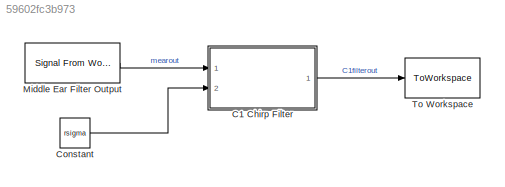
MODEL slx_59602fc3b973
KIND model
CONFIG AbsTol = auto
CONFIG EnableMultiTasking = off
CONFIG FixedStep = auto
CONFIG InitFcn = C1_Chirp_Test_Parameters\n
CONFIG MaxStep = auto
CONFIG MinStep = auto
CONFIG RelTol = 1e-3
CONFIG SampleTimeConstraint = Unconstrained
CONFIG Solver = VariableStepAuto
CONFIG SolverName = VariableStepAuto
CONFIG StartTime = 0.0
CONFIG StopFcn = Verify_C1_Chirp_Filter
CONFIG StopTime = testtime
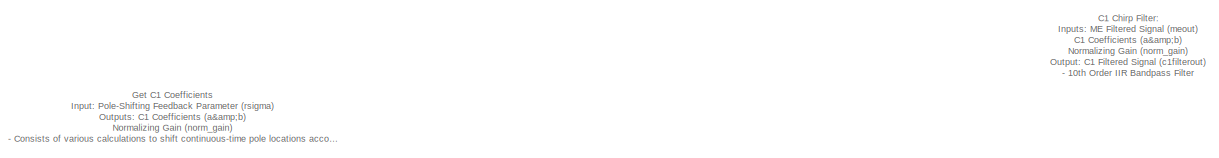
[diagram: C1 Chirp Filter - part 1/5, top center region]
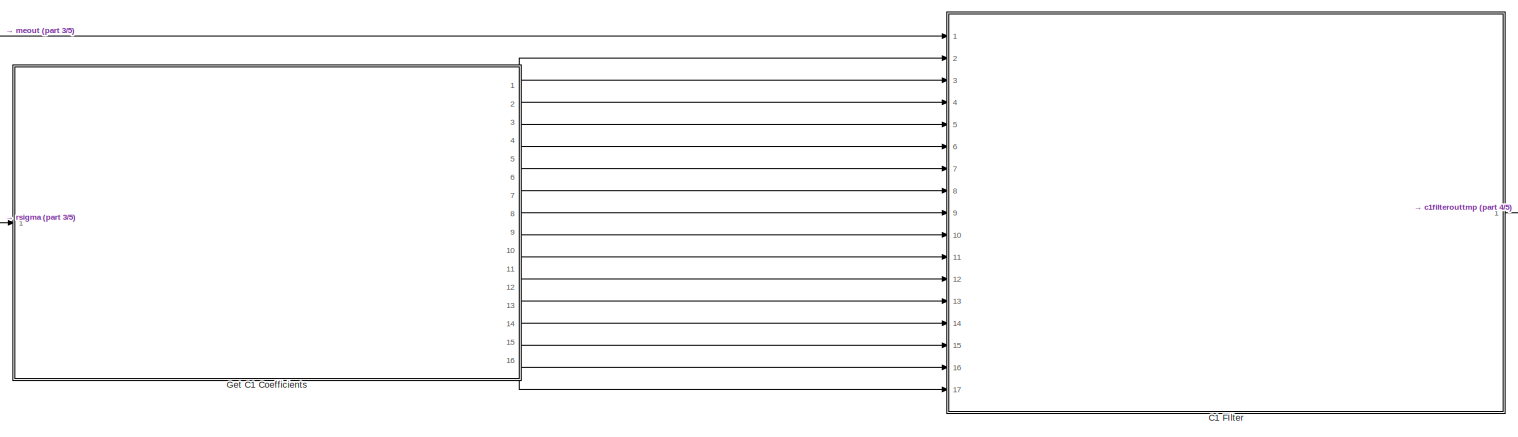
[diagram: C1 Chirp Filter - part 2/5, full width, bottom band]
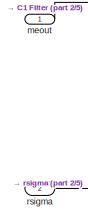
[diagram: C1 Chirp Filter - part 3/5, middle left region]
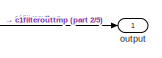
[diagram: C1 Chirp Filter - part 4/5, bottom right region]
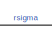
[diagram: C1 Chirp Filter - part 5/5, bottom left region]
BLOCK [SubSystem] C1 Chirp Filter
  Ports = [2, 1]
  RequestExecContextInheritance = off
  ShowPortLabels = none
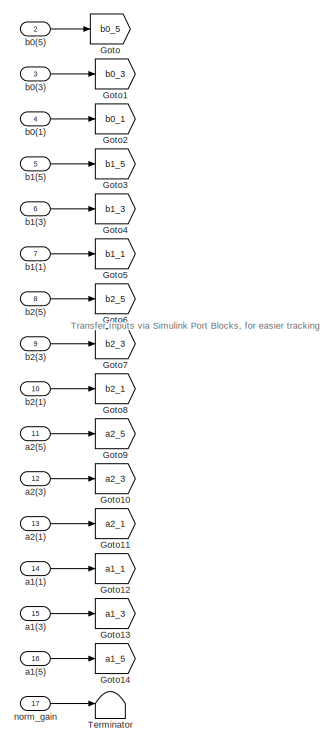
[diagram: C1 Chirp Filter/C1 FIlter - part 1/4, middle left region]
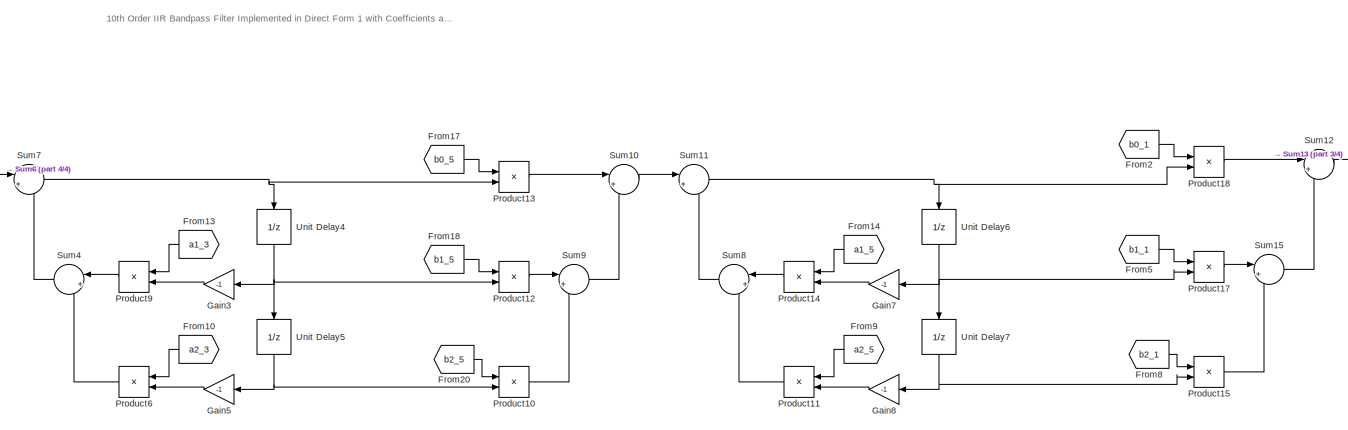
[diagram: C1 Chirp Filter/C1 FIlter - part 2/4, bottom center region]
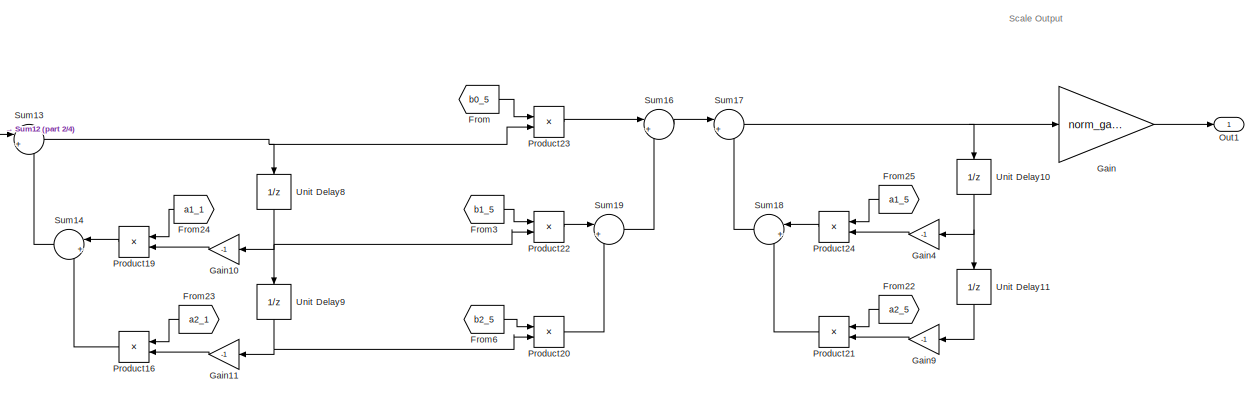
[diagram: C1 Chirp Filter/C1 FIlter - part 3/4, bottom right region]
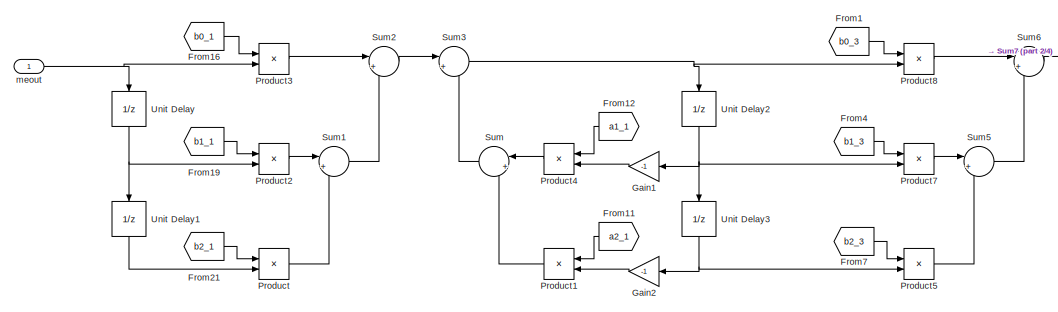
[diagram: C1 Chirp Filter/C1 FIlter - part 4/4, bottom left region]
BLOCK [SubSystem] C1 Chirp Filter/C1 FIlter
  Ports = [17, 1]
  RequestExecContextInheritance = off
BLOCK [From] C1 Chirp Filter/C1 FIlter/From
  GotoTag = b0_5
BLOCK [From] C1 Chirp Filter/C1 FIlter/From1
  GotoTag = b0_3
BLOCK [From] C1 Chirp Filter/C1 FIlter/From10
  GotoTag = a2_3
BLOCK [From] C1 Chirp Filter/C1 FIlter/From11
  GotoTag = a2_1
BLOCK [From] C1 Chirp Filter/C1 FIlter/From12
  GotoTag = a1_1
BLOCK [From] C1 Chirp Filter/C1 FIlter/From13
  GotoTag = a1_3
BLOCK [From] C1 Chirp Filter/C1 FIlter/From14
  GotoTag = a1_5
BLOCK [From] C1 Chirp Filter/C1 FIlter/From16
  GotoTag = b0_1
BLOCK [From] C1 Chirp Filter/C1 FIlter/From17
  GotoTag = b0_5
BLOCK [From] C1 Chirp Filter/C1 FIlter/From18
  GotoTag = b1_5
BLOCK [From] C1 Chirp Filter/C1 FIlter/From19
  GotoTag = b1_1
BLOCK [From] C1 Chirp Filter/C1 FIlter/From2
  GotoTag = b0_1
BLOCK [From] C1 Chirp Filter/C1 FIlter/From20
  GotoTag = b2_5
BLOCK [From] C1 Chirp Filter/C1 FIlter/From21
  GotoTag = b2_1
BLOCK [From] C1 Chirp Filter/C1 FIlter/From22
  GotoTag = a2_5
BLOCK [From] C1 Chirp Filter/C1 FIlter/From23
  GotoTag = a2_1
BLOCK [From] C1 Chirp Filter/C1 FIlter/From24
  GotoTag = a1_1
BLOCK [From] C1 Chirp Filter/C1 FIlter/From25
  GotoTag = a1_5
BLOCK [From] C1 Chirp Filter/C1 FIlter/From3
  GotoTag = b1_5
BLOCK [From] C1 Chirp Filter/C1 FIlter/From4
  GotoTag = b1_3
BLOCK [From] C1 Chirp Filter/C1 FIlter/From5
  GotoTag = b1_1
BLOCK [From] C1 Chirp Filter/C1 FIlter/From6
  GotoTag = b2_5
BLOCK [From] C1 Chirp Filter/C1 FIlter/From7
  GotoTag = b2_3
BLOCK [From] C1 Chirp Filter/C1 FIlter/From8
  GotoTag = b2_1
BLOCK [From] C1 Chirp Filter/C1 FIlter/From9
  GotoTag = a2_5
BLOCK [Gain] C1 Chirp Filter/C1 FIlter/Gain
  Gain = norm_gainc1/4
  OutDataTypeStr = Inherit: Inherit via internal rule
  ParamDataTypeStr = Inherit: Inherit via internal rule
  SaturateOnIntegerOverflow = off
BLOCK [Gain] C1 Chirp Filter/C1 FIlter/Gain1
  Gain = -1
  OutDataTypeStr = Inherit: Inherit via internal rule
  ParamDataTypeStr = Inherit: Inherit via internal rule
  SaturateOnIntegerOverflow = off
BLOCK [Gain] C1 Chirp Filter/C1 FIlter/Gain10
  Gain = -1
  OutDataTypeStr = Inherit: Inherit via internal rule
  ParamDataTypeStr = Inherit: Inherit via internal rule
  SaturateOnIntegerOverflow = off
BLOCK [Gain] C1 Chirp Filter/C1 FIlter/Gain11
  Gain = -1
  OutDataTypeStr = Inherit: Inherit via internal rule
  ParamDataTypeStr = Inherit: Inherit via internal rule
  SaturateOnIntegerOverflow = off
BLOCK [Gain] C1 Chirp Filter/C1 FIlter/Gain2
  Gain = -1
  OutDataTypeStr = Inherit: Inherit via internal rule
  ParamDataTypeStr = Inherit: Inherit via internal rule
  SaturateOnIntegerOverflow = off
BLOCK [Gain] C1 Chirp Filter/C1 FIlter/Gain3
  Gain = -1
  OutDataTypeStr = Inherit: Inherit via internal rule
  ParamDataTypeStr = Inherit: Inherit via internal rule
  SaturateOnIntegerOverflow = off
BLOCK [Gain] C1 Chirp Filter/C1 FIlter/Gain4
  Gain = -1
  OutDataTypeStr = Inherit: Inherit via internal rule
  ParamDataTypeStr = Inherit: Inherit via internal rule
  SaturateOnIntegerOverflow = off
BLOCK [Gain] C1 Chirp Filter/C1 FIlter/Gain5
  Gain = -1
  OutDataTypeStr = Inherit: Inherit via internal rule
  ParamDataTypeStr = Inherit: Inherit via internal rule
  SaturateOnIntegerOverflow = off
BLOCK [Gain] C1 Chirp Filter/C1 FIlter/Gain7
  Gain = -1
  OutDataTypeStr = Inherit: Inherit via internal rule
  ParamDataTypeStr = Inherit: Inherit via internal rule
  SaturateOnIntegerOverflow = off
BLOCK [Gain] C1 Chirp Filter/C1 FIlter/Gain8
  Gain = -1
  OutDataTypeStr = Inherit: Inherit via internal rule
  ParamDataTypeStr = Inherit: Inherit via internal rule
  SaturateOnIntegerOverflow = off
BLOCK [Gain] C1 Chirp Filter/C1 FIlter/Gain9
  Gain = -1
  OutDataTypeStr = Inherit: Inherit via internal rule
  ParamDataTypeStr = Inherit: Inherit via internal rule
  SaturateOnIntegerOverflow = off
BLOCK [Goto] C1 Chirp Filter/C1 FIlter/Goto
  GotoTag = b0_5
BLOCK [Goto] C1 Chirp Filter/C1 FIlter/Goto1
  GotoTag = b0_3
BLOCK [Goto] C1 Chirp Filter/C1 FIlter/Goto10
  GotoTag = a2_3
BLOCK [Goto] C1 Chirp Filter/C1 FIlter/Goto11
  GotoTag = a2_1
BLOCK [Goto] C1 Chirp Filter/C1 FIlter/Goto12
  GotoTag = a1_1
BLOCK [Goto] C1 Chirp Filter/C1 FIlter/Goto13
  GotoTag = a1_3
BLOCK [Goto] C1 Chirp Filter/C1 FIlter/Goto14
  GotoTag = a1_5
BLOCK [Goto] C1 Chirp Filter/C1 FIlter/Goto2
  GotoTag = b0_1
BLOCK [Goto] C1 Chirp Filter/C1 FIlter/Goto3
  GotoTag = b1_5
BLOCK [Goto] C1 Chirp Filter/C1 FIlter/Goto4
  GotoTag = b1_3
BLOCK [Goto] C1 Chirp Filter/C1 FIlter/Goto5
  GotoTag = b1_1
BLOCK [Goto] C1 Chirp Filter/C1 FIlter/Goto6
  GotoTag = b2_5
BLOCK [Goto] C1 Chirp Filter/C1 FIlter/Goto7
  GotoTag = b2_3
BLOCK [Goto] C1 Chirp Filter/C1 FIlter/Goto8
  GotoTag = b2_1
BLOCK [Goto] C1 Chirp Filter/C1 FIlter/Goto9
  GotoTag = a2_5
BLOCK [Outport] C1 Chirp Filter/C1 FIlter/Out1
  IconDisplay = Port number
BLOCK [Product] C1 Chirp Filter/C1 FIlter/Product
  InputSameDT = off
  OutDataTypeStr = Inherit: Inherit via internal rule
  Ports = [2, 1]
  RndMeth = Floor
  SaturateOnIntegerOverflow = off
BLOCK [Product] C1 Chirp Filter/C1 FIlter/Product1
  InputSameDT = off
  OutDataTypeStr = Inherit: Inherit via internal rule
  Ports = [2, 1]
  RndMeth = Floor
  SaturateOnIntegerOverflow = off
BLOCK [Product] C1 Chirp Filter/C1 FIlter/Product10
  InputSameDT = off
  OutDataTypeStr = Inherit: Inherit via internal rule
  Ports = [2, 1]
  RndMeth = Floor
  SaturateOnIntegerOverflow = off
BLOCK [Product] C1 Chirp Filter/C1 FIlter/Product11
  InputSameDT = off
  OutDataTypeStr = Inherit: Inherit via internal rule
  Ports = [2, 1]
  RndMeth = Floor
  SaturateOnIntegerOverflow = off
BLOCK [Product] C1 Chirp Filter/C1 FIlter/Product12
  InputSameDT = off
  OutDataTypeStr = Inherit: Inherit via internal rule
  Ports = [2, 1]
  RndMeth = Floor
  SaturateOnIntegerOverflow = off
BLOCK [Product] C1 Chirp Filter/C1 FIlter/Product13
  InputSameDT = off
  OutDataTypeStr = Inherit: Inherit via internal rule
  Ports = [2, 1]
  RndMeth = Floor
  SaturateOnIntegerOverflow = off
BLOCK [Product] C1 Chirp Filter/C1 FIlter/Product14
  InputSameDT = off
  OutDataTypeStr = Inherit: Inherit via internal rule
  Ports = [2, 1]
  RndMeth = Floor
  SaturateOnIntegerOverflow = off
BLOCK [Product] C1 Chirp Filter/C1 FIlter/Product15
  InputSameDT = off
  OutDataTypeStr = Inherit: Inherit via internal rule
  Ports = [2, 1]
  RndMeth = Floor
  SaturateOnIntegerOverflow = off
BLOCK [Product] C1 Chirp Filter/C1 FIlter/Product16
  InputSameDT = off
  OutDataTypeStr = Inherit: Inherit via internal rule
  Ports = [2, 1]
  RndMeth = Floor
  SaturateOnIntegerOverflow = off
BLOCK [Product] C1 Chirp Filter/C1 FIlter/Product17
  InputSameDT = off
  OutDataTypeStr = Inherit: Inherit via internal rule
  Ports = [2, 1]
  RndMeth = Floor
  SaturateOnIntegerOverflow = off
BLOCK [Product] C1 Chirp Filter/C1 FIlter/Product18
  InputSameDT = off
  OutDataTypeStr = Inherit: Inherit via internal rule
  Ports = [2, 1]
  RndMeth = Floor
  SaturateOnIntegerOverflow = off
BLOCK [Product] C1 Chirp Filter/C1 FIlter/Product19
  InputSameDT = off
  OutDataTypeStr = Inherit: Inherit via internal rule
  Ports = [2, 1]
  RndMeth = Floor
  SaturateOnIntegerOverflow = off
BLOCK [Product] C1 Chirp Filter/C1 FIlter/Product2
  InputSameDT = off
  OutDataTypeStr = Inherit: Inherit via internal rule
  Ports = [2, 1]
  RndMeth = Floor
  SaturateOnIntegerOverflow = off
BLOCK [Product] C1 Chirp Filter/C1 FIlter/Product20
  InputSameDT = off
  OutDataTypeStr = Inherit: Inherit via internal rule
  Ports = [2, 1]
  RndMeth = Floor
  SaturateOnIntegerOverflow = off
BLOCK [Product] C1 Chirp Filter/C1 FIlter/Product21
  InputSameDT = off
  OutDataTypeStr = Inherit: Inherit via internal rule
  Ports = [2, 1]
  RndMeth = Floor
  SaturateOnIntegerOverflow = off
BLOCK [Product] C1 Chirp Filter/C1 FIlter/Product22
  InputSameDT = off
  OutDataTypeStr = Inherit: Inherit via internal rule
  Ports = [2, 1]
  RndMeth = Floor
  SaturateOnIntegerOverflow = off
BLOCK [Product] C1 Chirp Filter/C1 FIlter/Product23
  InputSameDT = off
  OutDataTypeStr = Inherit: Inherit via internal rule
  Ports = [2, 1]
  RndMeth = Floor
  SaturateOnIntegerOverflow = off
BLOCK [Product] C1 Chirp Filter/C1 FIlter/Product24
  InputSameDT = off
  OutDataTypeStr = Inherit: Inherit via internal rule
  Ports = [2, 1]
  RndMeth = Floor
  SaturateOnIntegerOverflow = off
BLOCK [Product] C1 Chirp Filter/C1 FIlter/Product3
  InputSameDT = off
  OutDataTypeStr = Inherit: Inherit via internal rule
  Ports = [2, 1]
  RndMeth = Floor
  SaturateOnIntegerOverflow = off
BLOCK [Product] C1 Chirp Filter/C1 FIlter/Product4
  InputSameDT = off
  OutDataTypeStr = Inherit: Inherit via internal rule
  Ports = [2, 1]
  RndMeth = Floor
  SaturateOnIntegerOverflow = off
BLOCK [Product] C1 Chirp Filter/C1 FIlter/Product5
  InputSameDT = off
  OutDataTypeStr = Inherit: Inherit via internal rule
  Ports = [2, 1]
  RndMeth = Floor
  SaturateOnIntegerOverflow = off
BLOCK [Product] C1 Chirp Filter/C1 FIlter/Product6
  InputSameDT = off
  OutDataTypeStr = Inherit: Inherit via internal rule
  Ports = [2, 1]
  RndMeth = Floor
  SaturateOnIntegerOverflow = off
BLOCK [Product] C1 Chirp Filter/C1 FIlter/Product7
  InputSameDT = off
  OutDataTypeStr = Inherit: Inherit via internal rule
  Ports = [2, 1]
  RndMeth = Floor
  SaturateOnIntegerOverflow = off
BLOCK [Product] C1 Chirp Filter/C1 FIlter/Product8
  InputSameDT = off
  OutDataTypeStr = Inherit: Inherit via internal rule
  Ports = [2, 1]
  RndMeth = Floor
  SaturateOnIntegerOverflow = off
BLOCK [Product] C1 Chirp Filter/C1 FIlter/Product9
  InputSameDT = off
  OutDataTypeStr = Inherit: Inherit via internal rule
  Ports = [2, 1]
  RndMeth = Floor
  SaturateOnIntegerOverflow = off
BLOCK [Sum] C1 Chirp Filter/C1 FIlter/Sum
  IconShape = round
  InputSameDT = off
  Inputs = |++
  OutDataTypeStr = Inherit: Inherit via internal rule
  Ports = [2, 1]
  SaturateOnIntegerOverflow = off
BLOCK [Sum] C1 Chirp Filter/C1 FIlter/Sum1
  IconShape = round
  InputSameDT = off
  Inputs = |++
  OutDataTypeStr = Inherit: Inherit via internal rule
  Ports = [2, 1]
  SaturateOnIntegerOverflow = off
BLOCK [Sum] C1 Chirp Filter/C1 FIlter/Sum10
  IconShape = round
  InputSameDT = off
  Inputs = |++
  OutDataTypeStr = Inherit: Inherit via internal rule
  Ports = [2, 1]
  SaturateOnIntegerOverflow = off
BLOCK [Sum] C1 Chirp Filter/C1 FIlter/Sum11
  IconShape = round
  InputSameDT = off
  Inputs = |++
  OutDataTypeStr = Inherit: Inherit via internal rule
  Ports = [2, 1]
  SaturateOnIntegerOverflow = off
BLOCK [Sum] C1 Chirp Filter/C1 FIlter/Sum12
  IconShape = round
  InputSameDT = off
  Inputs = |++
  OutDataTypeStr = Inherit: Inherit via internal rule
  Ports = [2, 1]
  SaturateOnIntegerOverflow = off
BLOCK [Sum] C1 Chirp Filter/C1 FIlter/Sum13
  IconShape = round
  InputSameDT = off
  Inputs = |++
  OutDataTypeStr = Inherit: Inherit via internal rule
  Ports = [2, 1]
  SaturateOnIntegerOverflow = off
BLOCK [Sum] C1 Chirp Filter/C1 FIlter/Sum14
  IconShape = round
  InputSameDT = off
  Inputs = |++
  OutDataTypeStr = Inherit: Inherit via internal rule
  Ports = [2, 1]
  SaturateOnIntegerOverflow = off
BLOCK [Sum] C1 Chirp Filter/C1 FIlter/Sum15
  IconShape = round
  InputSameDT = off
  Inputs = |++
  OutDataTypeStr = Inherit: Inherit via internal rule
  Ports = [2, 1]
  SaturateOnIntegerOverflow = off
BLOCK [Sum] C1 Chirp Filter/C1 FIlter/Sum16
  IconShape = round
  InputSameDT = off
  Inputs = |++
  OutDataTypeStr = Inherit: Inherit via internal rule
  Ports = [2, 1]
  SaturateOnIntegerOverflow = off
BLOCK [Sum] C1 Chirp Filter/C1 FIlter/Sum17
  IconShape = round
  InputSameDT = off
  Inputs = |++
  OutDataTypeStr = Inherit: Inherit via internal rule
  Ports = [2, 1]
  SaturateOnIntegerOverflow = off
BLOCK [Sum] C1 Chirp Filter/C1 FIlter/Sum18
  IconShape = round
  InputSameDT = off
  Inputs = |++
  OutDataTypeStr = Inherit: Inherit via internal rule
  Ports = [2, 1]
  SaturateOnIntegerOverflow = off
BLOCK [Sum] C1 Chirp Filter/C1 FIlter/Sum19
  IconShape = round
  InputSameDT = off
  Inputs = |++
  OutDataTypeStr = Inherit: Inherit via internal rule
  Ports = [2, 1]
  SaturateOnIntegerOverflow = off
BLOCK [Sum] C1 Chirp Filter/C1 FIlter/Sum2
  IconShape = round
  InputSameDT = off
  Inputs = |++
  OutDataTypeStr = Inherit: Inherit via internal rule
  Ports = [2, 1]
  SaturateOnIntegerOverflow = off
BLOCK [Sum] C1 Chirp Filter/C1 FIlter/Sum3
  IconShape = round
  InputSameDT = off
  Inputs = |++
  OutDataTypeStr = Inherit: Inherit via internal rule
  Ports = [2, 1]
  SaturateOnIntegerOverflow = off
BLOCK [Sum] C1 Chirp Filter/C1 FIlter/Sum4
  IconShape = round
  InputSameDT = off
  Inputs = |++
  OutDataTypeStr = Inherit: Inherit via internal rule
  Ports = [2, 1]
  SaturateOnIntegerOverflow = off
BLOCK [Sum] C1 Chirp Filter/C1 FIlter/Sum5
  IconShape = round
  InputSameDT = off
  Inputs = |++
  OutDataTypeStr = Inherit: Inherit via internal rule
  Ports = [2, 1]
  SaturateOnIntegerOverflow = off
BLOCK [Sum] C1 Chirp Filter/C1 FIlter/Sum6
  IconShape = round
  InputSameDT = off
  Inputs = |++
  OutDataTypeStr = Inherit: Inherit via internal rule
  Ports = [2, 1]
  SaturateOnIntegerOverflow = off
BLOCK [Sum] C1 Chirp Filter/C1 FIlter/Sum7
  IconShape = round
  InputSameDT = off
  Inputs = |++
  OutDataTypeStr = Inherit: Inherit via internal rule
  Ports = [2, 1]
  SaturateOnIntegerOverflow = off
BLOCK [Sum] C1 Chirp Filter/C1 FIlter/Sum8
  IconShape = round
  InputSameDT = off
  Inputs = |++
  OutDataTypeStr = Inherit: Inherit via internal rule
  Ports = [2, 1]
  SaturateOnIntegerOverflow = off
BLOCK [Sum] C1 Chirp Filter/C1 FIlter/Sum9
  IconShape = round
  InputSameDT = off
  Inputs = |++
  OutDataTypeStr = Inherit: Inherit via internal rule
  Ports = [2, 1]
  SaturateOnIntegerOverflow = off
BLOCK [Terminator] C1 Chirp Filter/C1 FIlter/Terminator
BLOCK [UnitDelay] C1 Chirp Filter/C1 FIlter/Unit Delay
  HasFrameUpgradeWarning = on
  SampleTime = -1
BLOCK [UnitDelay] C1 Chirp Filter/C1 FIlter/Unit Delay1
  HasFrameUpgradeWarning = on
  SampleTime = -1
BLOCK [UnitDelay] C1 Chirp Filter/C1 FIlter/Unit Delay10
  HasFrameUpgradeWarning = on
  SampleTime = -1
BLOCK [UnitDelay] C1 Chirp Filter/C1 FIlter/Unit Delay11
  HasFrameUpgradeWarning = on
  SampleTime = -1
BLOCK [UnitDelay] C1 Chirp Filter/C1 FIlter/Unit Delay2
  HasFrameUpgradeWarning = on
  SampleTime = -1
BLOCK [UnitDelay] C1 Chirp Filter/C1 FIlter/Unit Delay3
  HasFrameUpgradeWarning = on
  SampleTime = -1
BLOCK [UnitDelay] C1 Chirp Filter/C1 FIlter/Unit Delay4
  HasFrameUpgradeWarning = on
  SampleTime = -1
BLOCK [UnitDelay] C1 Chirp Filter/C1 FIlter/Unit Delay5
  HasFrameUpgradeWarning = on
  SampleTime = -1
BLOCK [UnitDelay] C1 Chirp Filter/C1 FIlter/Unit Delay6
  HasFrameUpgradeWarning = on
  SampleTime = -1
BLOCK [UnitDelay] C1 Chirp Filter/C1 FIlter/Unit Delay7
  HasFrameUpgradeWarning = on
  SampleTime = -1
BLOCK [UnitDelay] C1 Chirp Filter/C1 FIlter/Unit Delay8
  HasFrameUpgradeWarning = on
  SampleTime = -1
BLOCK [UnitDelay] C1 Chirp Filter/C1 FIlter/Unit Delay9
  HasFrameUpgradeWarning = on
  SampleTime = -1
BLOCK [Inport] C1 Chirp Filter/C1 FIlter/a1(1)
  IconDisplay = Port number
  Port = 14
BLOCK [Inport] C1 Chirp Filter/C1 FIlter/a1(3)
  IconDisplay = Port number
  Port = 15
BLOCK [Inport] C1 Chirp Filter/C1 FIlter/a1(5)
  IconDisplay = Port number
  Port = 16
BLOCK [Inport] C1 Chirp Filter/C1 FIlter/a2(1)
  IconDisplay = Port number
  Port = 13
BLOCK [Inport] C1 Chirp Filter/C1 FIlter/a2(3)
  IconDisplay = Port number
  Port = 12
BLOCK [Inport] C1 Chirp Filter/C1 FIlter/a2(5)
  IconDisplay = Port number
  Port = 11
BLOCK [Inport] C1 Chirp Filter/C1 FIlter/b0(1)
  IconDisplay = Port number
  Port = 4
BLOCK [Inport] C1 Chirp Filter/C1 FIlter/b0(3)
  IconDisplay = Port number
  Port = 3
BLOCK [Inport] C1 Chirp Filter/C1 FIlter/b0(5)
  IconDisplay = Port number
  Port = 2
BLOCK [Inport] C1 Chirp Filter/C1 FIlter/b1(1)
  IconDisplay = Port number
  Port = 7
BLOCK [Inport] C1 Chirp Filter/C1 FIlter/b1(3)
  IconDisplay = Port number
  Port = 6
BLOCK [Inport] C1 Chirp Filter/C1 FIlter/b1(5)
  IconDisplay = Port number
  Port = 5
BLOCK [Inport] C1 Chirp Filter/C1 FIlter/b2(1)
  IconDisplay = Port number
  Port = 10
BLOCK [Inport] C1 Chirp Filter/C1 FIlter/b2(3)
  IconDisplay = Port number
  Port = 9
BLOCK [Inport] C1 Chirp Filter/C1 FIlter/b2(5)
  IconDisplay = Port number
  Port = 8
BLOCK [Inport] C1 Chirp Filter/C1 FIlter/meout
  IconDisplay = Port number
BLOCK [Inport] C1 Chirp Filter/C1 FIlter/norm_gain
  IconDisplay = Port number
  Port = 17
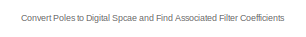
[diagram: C1 Chirp Filter/Get C1 Coefficients - part 1/10, top right region]
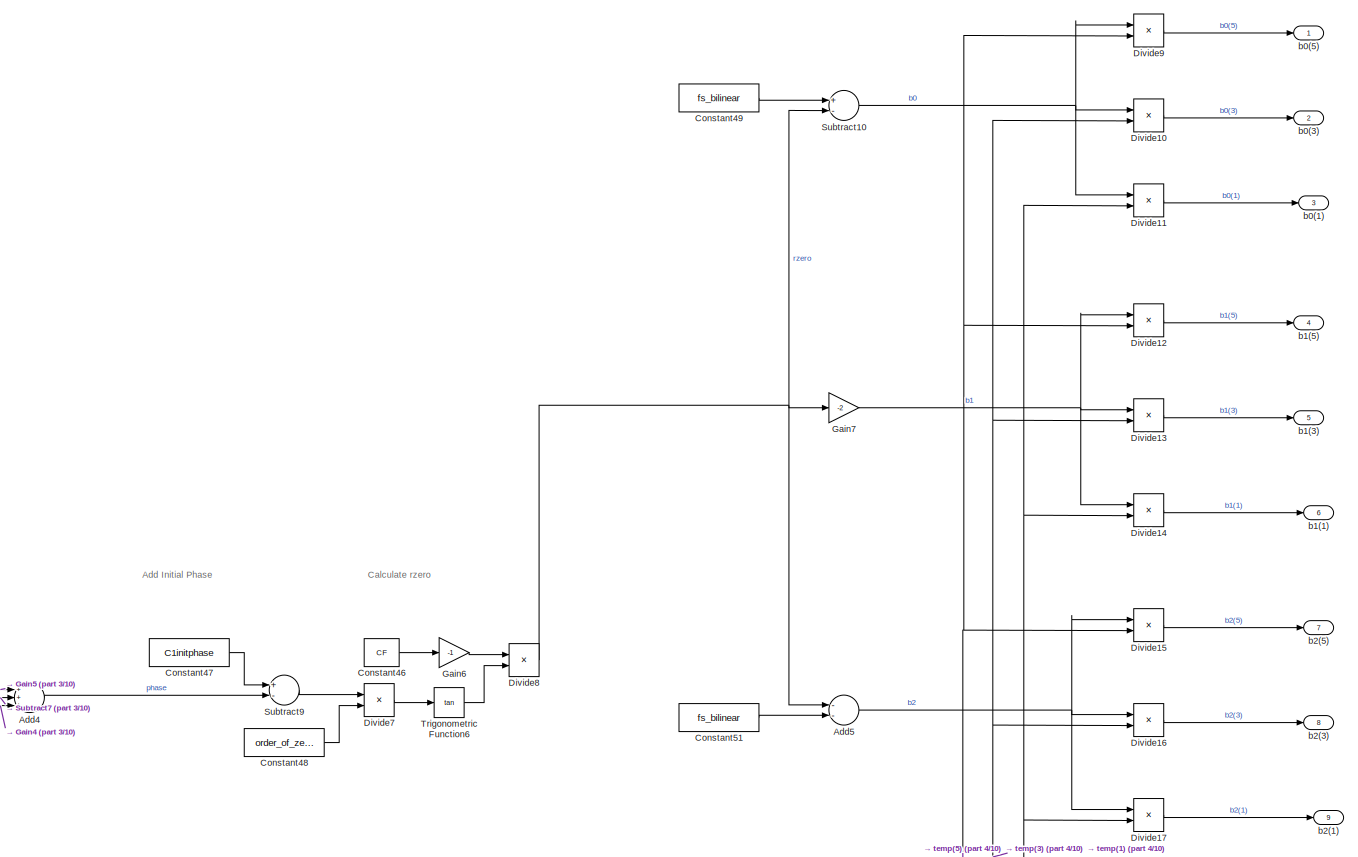
[diagram: C1 Chirp Filter/Get C1 Coefficients - part 2/10, top right region]
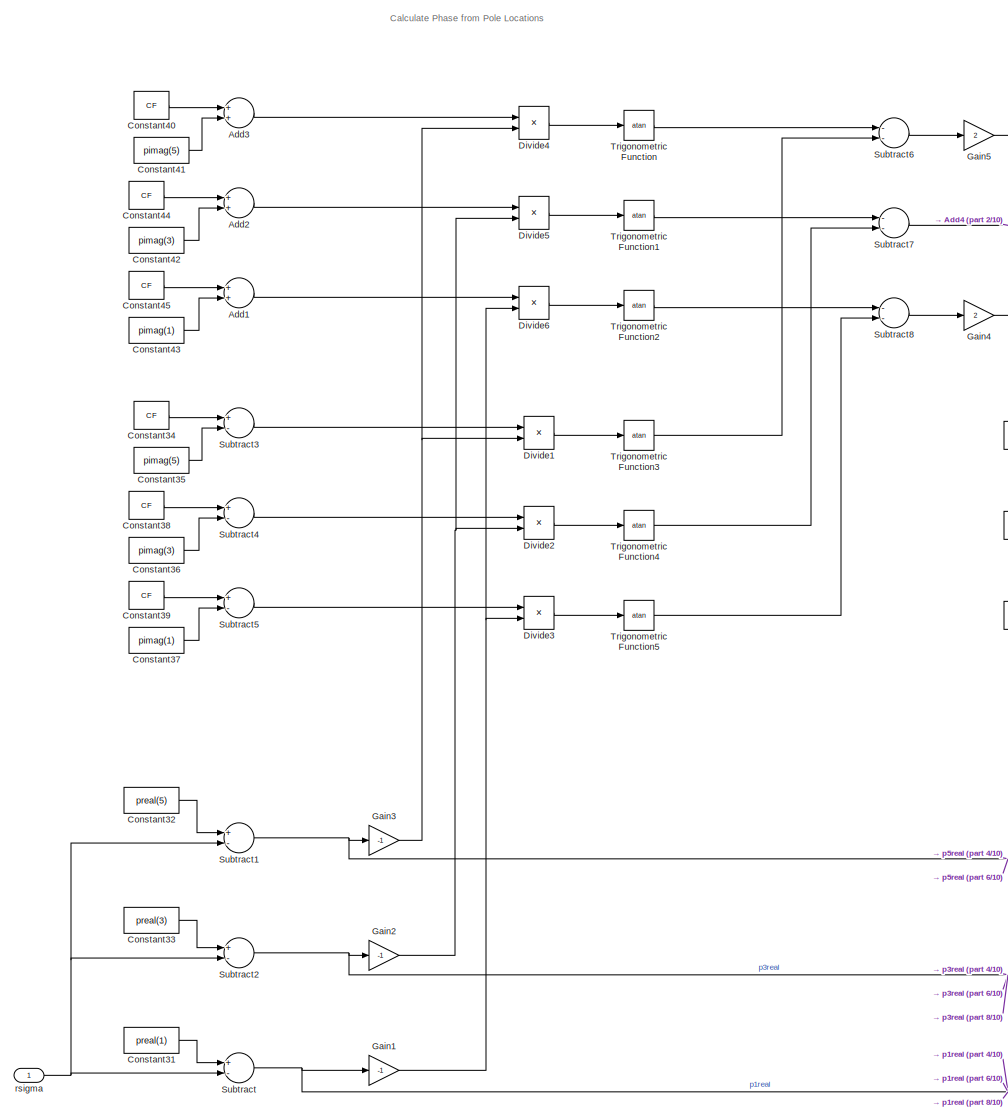
[diagram: C1 Chirp Filter/Get C1 Coefficients - part 3/10, middle left region]
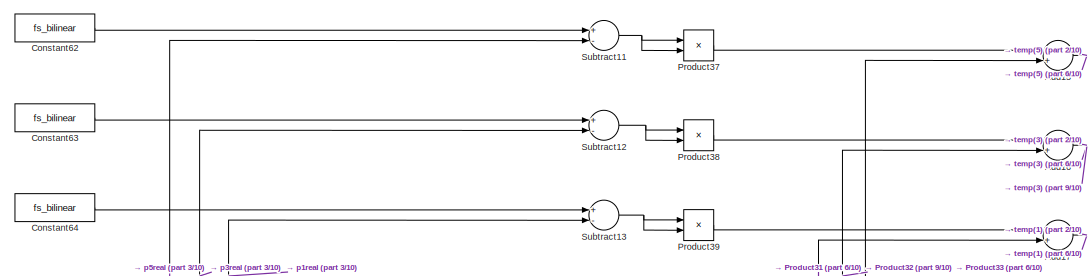
[diagram: C1 Chirp Filter/Get C1 Coefficients - part 4/10, central region]
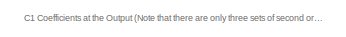
[diagram: C1 Chirp Filter/Get C1 Coefficients - part 5/10, middle right region]
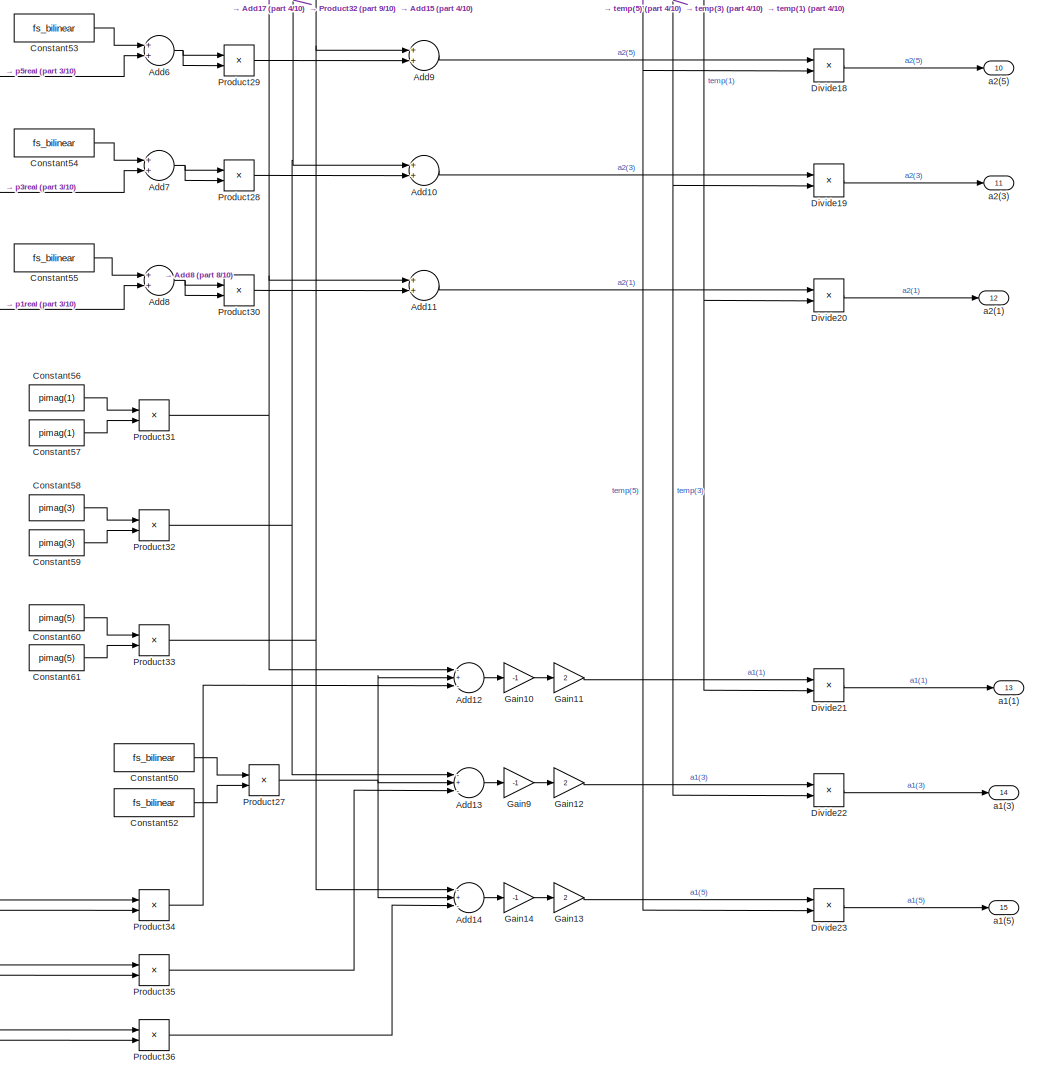
[diagram: C1 Chirp Filter/Get C1 Coefficients - part 6/10, bottom right region]
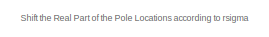
[diagram: C1 Chirp Filter/Get C1 Coefficients - part 7/10, middle left region]
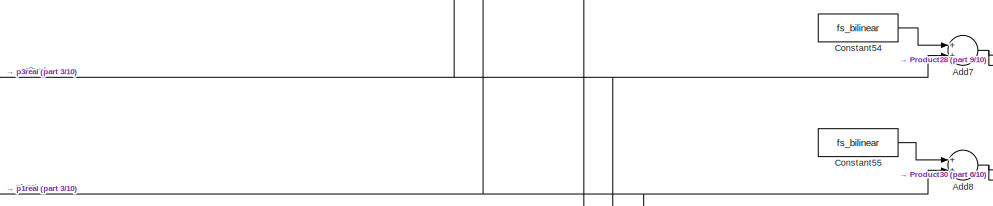
[diagram: C1 Chirp Filter/Get C1 Coefficients - part 8/10, central region]
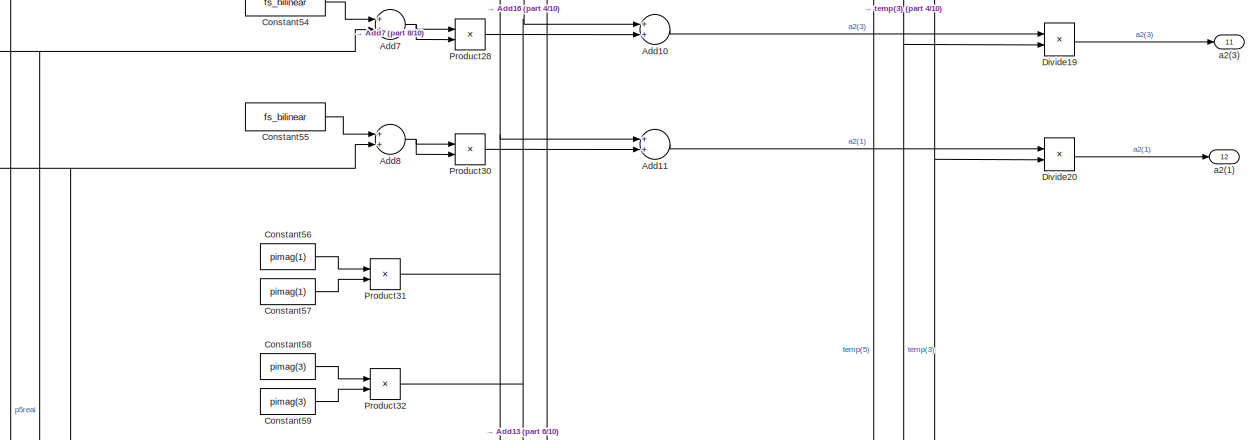
[diagram: C1 Chirp Filter/Get C1 Coefficients - part 9/10, middle right region]
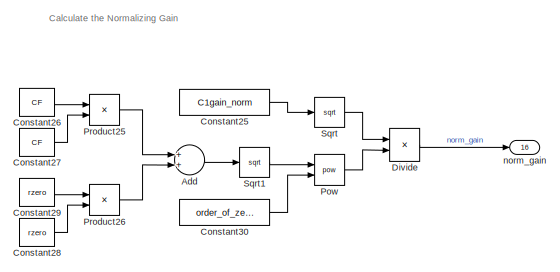
[diagram: C1 Chirp Filter/Get C1 Coefficients - part 10/10, bottom right region]
BLOCK [SubSystem] C1 Chirp Filter/Get C1 Coefficients
  Ports = [1, 16]
  RequestExecContextInheritance = off
BLOCK [Sum] C1 Chirp Filter/Get C1 Coefficients/Add
  InputSameDT = off
  OutDataTypeStr = Inherit: Inherit via internal rule
  Ports = [2, 1]
  SaturateOnIntegerOverflow = off
BLOCK [Sum] C1 Chirp Filter/Get C1 Coefficients/Add1
  InputSameDT = off
  OutDataTypeStr = Inherit: Inherit via internal rule
  Ports = [2, 1]
  SaturateOnIntegerOverflow = off
BLOCK [Sum] C1 Chirp Filter/Get C1 Coefficients/Add10
  InputSameDT = off
  OutDataTypeStr = Inherit: Inherit via internal rule
  Ports = [2, 1]
  SaturateOnIntegerOverflow = off
BLOCK [Sum] C1 Chirp Filter/Get C1 Coefficients/Add11
  InputSameDT = off
  OutDataTypeStr = Inherit: Inherit via internal rule
  Ports = [2, 1]
  SaturateOnIntegerOverflow = off
BLOCK [Sum] C1 Chirp Filter/Get C1 Coefficients/Add12
  InputSameDT = off
  Inputs = -+-
  OutDataTypeStr = Inherit: Inherit via internal rule
  Ports = [3, 1]
  SaturateOnIntegerOverflow = off
BLOCK [Sum] C1 Chirp Filter/Get C1 Coefficients/Add13
  InputSameDT = off
  Inputs = -+-
  OutDataTypeStr = Inherit: Inherit via internal rule
  Ports = [3, 1]
  SaturateOnIntegerOverflow = off
BLOCK [Sum] C1 Chirp Filter/Get C1 Coefficients/Add14
  InputSameDT = off
  Inputs = -+-
  OutDataTypeStr = Inherit: Inherit via internal rule
  Ports = [3, 1]
  SaturateOnIntegerOverflow = off
BLOCK [Sum] C1 Chirp Filter/Get C1 Coefficients/Add15
  InputSameDT = off
  OutDataTypeStr = Inherit: Inherit via internal rule
  Ports = [2, 1]
  SaturateOnIntegerOverflow = off
BLOCK [Sum] C1 Chirp Filter/Get C1 Coefficients/Add16
  InputSameDT = off
  OutDataTypeStr = Inherit: Inherit via internal rule
  Ports = [2, 1]
  SaturateOnIntegerOverflow = off
BLOCK [Sum] C1 Chirp Filter/Get C1 Coefficients/Add17
  InputSameDT = off
  OutDataTypeStr = Inherit: Inherit via internal rule
  Ports = [2, 1]
  SaturateOnIntegerOverflow = off
BLOCK [Sum] C1 Chirp Filter/Get C1 Coefficients/Add2
  InputSameDT = off
  OutDataTypeStr = Inherit: Inherit via internal rule
  Ports = [2, 1]
  SaturateOnIntegerOverflow = off
BLOCK [Sum] C1 Chirp Filter/Get C1 Coefficients/Add3
  InputSameDT = off
  OutDataTypeStr = Inherit: Inherit via internal rule
  Ports = [2, 1]
  SaturateOnIntegerOverflow = off
BLOCK [Sum] C1 Chirp Filter/Get C1 Coefficients/Add4
  InputSameDT = off
  Inputs = +++
  OutDataTypeStr = Inherit: Inherit via internal rule
  Ports = [3, 1]
  SaturateOnIntegerOverflow = off
BLOCK [Sum] C1 Chirp Filter/Get C1 Coefficients/Add5
  InputSameDT = off
  Inputs = --
  OutDataTypeStr = Inherit: Inherit via internal rule
  Ports = [2, 1]
  SaturateOnIntegerOverflow = off
BLOCK [Sum] C1 Chirp Filter/Get C1 Coefficients/Add6
  InputSameDT = off
  OutDataTypeStr = Inherit: Inherit via internal rule
  Ports = [2, 1]
  SaturateOnIntegerOverflow = off
BLOCK [Sum] C1 Chirp Filter/Get C1 Coefficients/Add7
  InputSameDT = off
  OutDataTypeStr = Inherit: Inherit via internal rule
  Ports = [2, 1]
  SaturateOnIntegerOverflow = off
BLOCK [Sum] C1 Chirp Filter/Get C1 Coefficients/Add8
  InputSameDT = off
  OutDataTypeStr = Inherit: Inherit via internal rule
  Ports = [2, 1]
  SaturateOnIntegerOverflow = off
BLOCK [Sum] C1 Chirp Filter/Get C1 Coefficients/Add9
  InputSameDT = off
  OutDataTypeStr = Inherit: Inherit via internal rule
  Ports = [2, 1]
  SaturateOnIntegerOverflow = off
BLOCK [Constant] C1 Chirp Filter/Get C1 Coefficients/Constant25
  SampleTime = -1
  Value = C1gain_norm
BLOCK [Constant] C1 Chirp Filter/Get C1 Coefficients/Constant26
  SampleTime = -1
  Value = CF
BLOCK [Constant] C1 Chirp Filter/Get C1 Coefficients/Constant27
  SampleTime = -1
  Value = CF
BLOCK [Constant] C1 Chirp Filter/Get C1 Coefficients/Constant28
  SampleTime = -1
  Value = rzero
BLOCK [Constant] C1 Chirp Filter/Get C1 Coefficients/Constant29
  SampleTime = -1
  Value = rzero
BLOCK [Constant] C1 Chirp Filter/Get C1 Coefficients/Constant30
  SampleTime = -1
  Value = order_of_zero
BLOCK [Constant] C1 Chirp Filter/Get C1 Coefficients/Constant31
  SampleTime = -1
  Value = preal(1)
BLOCK [Constant] C1 Chirp Filter/Get C1 Coefficients/Constant32
  SampleTime = -1
  Value = preal(5)
BLOCK [Constant] C1 Chirp Filter/Get C1 Coefficients/Constant33
  SampleTime = -1
  Value = preal(3)
BLOCK [Constant] C1 Chirp Filter/Get C1 Coefficients/Constant34
  SampleTime = -1
  Value = CF
BLOCK [Constant] C1 Chirp Filter/Get C1 Coefficients/Constant35
  SampleTime = -1
  Value = pimag(5)
BLOCK [Constant] C1 Chirp Filter/Get C1 Coefficients/Constant36
  SampleTime = -1
  Value = pimag(3)
BLOCK [Constant] C1 Chirp Filter/Get C1 Coefficients/Constant37
  SampleTime = -1
  Value = pimag(1)
BLOCK [Constant] C1 Chirp Filter/Get C1 Coefficients/Constant38
  SampleTime = -1
  Value = CF
BLOCK [Constant] C1 Chirp Filter/Get C1 Coefficients/Constant39
  SampleTime = -1
  Value = CF
BLOCK [Constant] C1 Chirp Filter/Get C1 Coefficients/Constant40
  SampleTime = -1
  Value = CF
BLOCK [Constant] C1 Chirp Filter/Get C1 Coefficients/Constant41
  SampleTime = -1
  Value = pimag(5)
BLOCK [Constant] C1 Chirp Filter/Get C1 Coefficients/Constant42
  SampleTime = -1
  Value = pimag(3)
BLOCK [Constant] C1 Chirp Filter/Get C1 Coefficients/Constant43
  SampleTime = -1
  Value = pimag(1)
BLOCK [Constant] C1 Chirp Filter/Get C1 Coefficients/Constant44
  SampleTime = -1
  Value = CF
BLOCK [Constant] C1 Chirp Filter/Get C1 Coefficients/Constant45
  SampleTime = -1
  Value = CF
BLOCK [Constant] C1 Chirp Filter/Get C1 Coefficients/Constant46
  SampleTime = -1
  Value = CF
BLOCK [Constant] C1 Chirp Filter/Get C1 Coefficients/Constant47
  SampleTime = -1
  Value = C1initphase
BLOCK [Constant] C1 Chirp Filter/Get C1 Coefficients/Constant48
  SampleTime = -1
  Value = order_of_zero
BLOCK [Constant] C1 Chirp Filter/Get C1 Coefficients/Constant49
  SampleTime = -1
  Value = fs_bilinear
BLOCK [Constant] C1 Chirp Filter/Get C1 Coefficients/Constant50
  SampleTime = -1
  Value = fs_bilinear
BLOCK [Constant] C1 Chirp Filter/Get C1 Coefficients/Constant51
  SampleTime = -1
  Value = fs_bilinear
BLOCK [Constant] C1 Chirp Filter/Get C1 Coefficients/Constant52
  SampleTime = -1
  Value = fs_bilinear
BLOCK [Constant] C1 Chirp Filter/Get C1 Coefficients/Constant53
  SampleTime = -1
  Value = fs_bilinear
BLOCK [Constant] C1 Chirp Filter/Get C1 Coefficients/Constant54
  SampleTime = -1
  Value = fs_bilinear
BLOCK [Constant] C1 Chirp Filter/Get C1 Coefficients/Constant55
  SampleTime = -1
  Value = fs_bilinear
BLOCK [Constant] C1 Chirp Filter/Get C1 Coefficients/Constant56
  SampleTime = -1
  Value = pimag(1)
BLOCK [Constant] C1 Chirp Filter/Get C1 Coefficients/Constant57
  SampleTime = -1
  Value = pimag(1)
BLOCK [Constant] C1 Chirp Filter/Get C1 Coefficients/Constant58
  SampleTime = -1
  Value = pimag(3)
BLOCK [Constant] C1 Chirp Filter/Get C1 Coefficients/Constant59
  SampleTime = -1
  Value = pimag(3)
BLOCK [Constant] C1 Chirp Filter/Get C1 Coefficients/Constant60
  SampleTime = -1
  Value = pimag(5)
BLOCK [Constant] C1 Chirp Filter/Get C1 Coefficients/Constant61
  SampleTime = -1
  Value = pimag(5)
BLOCK [Constant] C1 Chirp Filter/Get C1 Coefficients/Constant62
  SampleTime = -1
  Value = fs_bilinear
BLOCK [Constant] C1 Chirp Filter/Get C1 Coefficients/Constant63
  SampleTime = -1
  Value = fs_bilinear
BLOCK [Constant] C1 Chirp Filter/Get C1 Coefficients/Constant64
  SampleTime = -1
  Value = fs_bilinear
BLOCK [Product] C1 Chirp Filter/Get C1 Coefficients/Divide
  InputSameDT = off
  Inputs = */
  OutDataTypeStr = Inherit: Inherit via internal rule
  Ports = [2, 1]
BLOCK [Product] C1 Chirp Filter/Get C1 Coefficients/Divide1
  InputSameDT = off
  Inputs = */
  OutDataTypeStr = Inherit: Inherit via internal rule
  Ports = [2, 1]
BLOCK [Product] C1 Chirp Filter/Get C1 Coefficients/Divide10
  InputSameDT = off
  Inputs = */
  OutDataTypeStr = Inherit: Inherit via internal rule
  Ports = [2, 1]
BLOCK [Product] C1 Chirp Filter/Get C1 Coefficients/Divide11
  InputSameDT = off
  Inputs = */
  OutDataTypeStr = Inherit: Inherit via internal rule
  Ports = [2, 1]
BLOCK [Product] C1 Chirp Filter/Get C1 Coefficients/Divide12
  InputSameDT = off
  Inputs = */
  OutDataTypeStr = Inherit: Inherit via internal rule
  Ports = [2, 1]
BLOCK [Product] C1 Chirp Filter/Get C1 Coefficients/Divide13
  InputSameDT = off
  Inputs = */
  OutDataTypeStr = Inherit: Inherit via internal rule
  Ports = [2, 1]
BLOCK [Product] C1 Chirp Filter/Get C1 Coefficients/Divide14
  InputSameDT = off
  Inputs = */
  OutDataTypeStr = Inherit: Inherit via internal rule
  Ports = [2, 1]
BLOCK [Product] C1 Chirp Filter/Get C1 Coefficients/Divide15
  InputSameDT = off
  Inputs = */
  OutDataTypeStr = Inherit: Inherit via internal rule
  Ports = [2, 1]
BLOCK [Product] C1 Chirp Filter/Get C1 Coefficients/Divide16
  InputSameDT = off
  Inputs = */
  OutDataTypeStr = Inherit: Inherit via internal rule
  Ports = [2, 1]
BLOCK [Product] C1 Chirp Filter/Get C1 Coefficients/Divide17
  InputSameDT = off
  Inputs = */
  OutDataTypeStr = Inherit: Inherit via internal rule
  Ports = [2, 1]
BLOCK [Product] C1 Chirp Filter/Get C1 Coefficients/Divide18
  InputSameDT = off
  Inputs = */
  OutDataTypeStr = Inherit: Inherit via internal rule
  Ports = [2, 1]
BLOCK [Product] C1 Chirp Filter/Get C1 Coefficients/Divide19
  InputSameDT = off
  Inputs = */
  OutDataTypeStr = Inherit: Inherit via internal rule
  Ports = [2, 1]
BLOCK [Product] C1 Chirp Filter/Get C1 Coefficients/Divide2
  InputSameDT = off
  Inputs = */
  OutDataTypeStr = Inherit: Inherit via internal rule
  Ports = [2, 1]
BLOCK [Product] C1 Chirp Filter/Get C1 Coefficients/Divide20
  InputSameDT = off
  Inputs = */
  OutDataTypeStr = Inherit: Inherit via internal rule
  Ports = [2, 1]
BLOCK [Product] C1 Chirp Filter/Get C1 Coefficients/Divide21
  InputSameDT = off
  Inputs = */
  OutDataTypeStr = Inherit: Inherit via internal rule
  Ports = [2, 1]
BLOCK [Product] C1 Chirp Filter/Get C1 Coefficients/Divide22
  InputSameDT = off
  Inputs = */
  OutDataTypeStr = Inherit: Inherit via internal rule
  Ports = [2, 1]
BLOCK [Product] C1 Chirp Filter/Get C1 Coefficients/Divide23
  InputSameDT = off
  Inputs = */
  OutDataTypeStr = Inherit: Inherit via internal rule
  Ports = [2, 1]
BLOCK [Product] C1 Chirp Filter/Get C1 Coefficients/Divide3
  InputSameDT = off
  Inputs = */
  OutDataTypeStr = Inherit: Inherit via internal rule
  Ports = [2, 1]
BLOCK [Product] C1 Chirp Filter/Get C1 Coefficients/Divide4
  InputSameDT = off
  Inputs = */
  OutDataTypeStr = Inherit: Inherit via internal rule
  Ports = [2, 1]
BLOCK [Product] C1 Chirp Filter/Get C1 Coefficients/Divide5
  InputSameDT = off
  Inputs = */
  OutDataTypeStr = Inherit: Inherit via internal rule
  Ports = [2, 1]
BLOCK [Product] C1 Chirp Filter/Get C1 Coefficients/Divide6
  InputSameDT = off
  Inputs = */
  OutDataTypeStr = Inherit: Inherit via internal rule
  Ports = [2, 1]
BLOCK [Product] C1 Chirp Filter/Get C1 Coefficients/Divide7
  InputSameDT = off
  Inputs = */
  OutDataTypeStr = Inherit: Inherit via internal rule
  Ports = [2, 1]
BLOCK [Product] C1 Chirp Filter/Get C1 Coefficients/Divide8
  InputSameDT = off
  Inputs = */
  OutDataTypeStr = Inherit: Inherit via internal rule
  Ports = [2, 1]
BLOCK [Product] C1 Chirp Filter/Get C1 Coefficients/Divide9
  InputSameDT = off
  Inputs = */
  OutDataTypeStr = Inherit: Inherit via internal rule
  Ports = [2, 1]
BLOCK [Gain] C1 Chirp Filter/Get C1 Coefficients/Gain1
  Gain = -1
  OutDataTypeStr = Inherit: Inherit via internal rule
  ParamDataTypeStr = Inherit: Inherit via internal rule
  SaturateOnIntegerOverflow = off
BLOCK [Gain] C1 Chirp Filter/Get C1 Coefficients/Gain10
  Gain = -1
  OutDataTypeStr = Inherit: Inherit via internal rule
  ParamDataTypeStr = Inherit: Inherit via internal rule
  SaturateOnIntegerOverflow = off
BLOCK [Gain] C1 Chirp Filter/Get C1 Coefficients/Gain11
  Gain = 2
  OutDataTypeStr = Inherit: Inherit via internal rule
  ParamDataTypeStr = Inherit: Inherit via internal rule
  SaturateOnIntegerOverflow = off
BLOCK [Gain] C1 Chirp Filter/Get C1 Coefficients/Gain12
  Gain = 2
  OutDataTypeStr = Inherit: Inherit via internal rule
  ParamDataTypeStr = Inherit: Inherit via internal rule
  SaturateOnIntegerOverflow = off
BLOCK [Gain] C1 Chirp Filter/Get C1 Coefficients/Gain13
  Gain = 2
  OutDataTypeStr = Inherit: Inherit via internal rule
  ParamDataTypeStr = Inherit: Inherit via internal rule
  SaturateOnIntegerOverflow = off
BLOCK [Gain] C1 Chirp Filter/Get C1 Coefficients/Gain14
  Gain = -1
  OutDataTypeStr = Inherit: Inherit via internal rule
  ParamDataTypeStr = Inherit: Inherit via internal rule
  SaturateOnIntegerOverflow = off
BLOCK [Gain] C1 Chirp Filter/Get C1 Coefficients/Gain2
  Gain = -1
  OutDataTypeStr = Inherit: Inherit via internal rule
  ParamDataTypeStr = Inherit: Inherit via internal rule
  SaturateOnIntegerOverflow = off
BLOCK [Gain] C1 Chirp Filter/Get C1 Coefficients/Gain3
  Gain = -1
  OutDataTypeStr = Inherit: Inherit via internal rule
  ParamDataTypeStr = Inherit: Inherit via internal rule
  SaturateOnIntegerOverflow = off
BLOCK [Gain] C1 Chirp Filter/Get C1 Coefficients/Gain4
  Gain = 2
  OutDataTypeStr = Inherit: Inherit via internal rule
  ParamDataTypeStr = Inherit: Inherit via internal rule
  SaturateOnIntegerOverflow = off
BLOCK [Gain] C1 Chirp Filter/Get C1 Coefficients/Gain5
  Gain = 2
  OutDataTypeStr = Inherit: Inherit via internal rule
  ParamDataTypeStr = Inherit: Inherit via internal rule
  SaturateOnIntegerOverflow = off
BLOCK [Gain] C1 Chirp Filter/Get C1 Coefficients/Gain6
  Gain = -1
  OutDataTypeStr = Inherit: Inherit via internal rule
  ParamDataTypeStr = Inherit: Inherit via internal rule
  SaturateOnIntegerOverflow = off
BLOCK [Gain] C1 Chirp Filter/Get C1 Coefficients/Gain7
  Gain = -2
  OutDataTypeStr = Inherit: Inherit via internal rule
  ParamDataTypeStr = Inherit: Inherit via internal rule
  SaturateOnIntegerOverflow = off
BLOCK [Gain] C1 Chirp Filter/Get C1 Coefficients/Gain9
  Gain = -1
  OutDataTypeStr = Inherit: Inherit via internal rule
  ParamDataTypeStr = Inherit: Inherit via internal rule
  SaturateOnIntegerOverflow = off
BLOCK [Math] C1 Chirp Filter/Get C1 Coefficients/Pow
  Operator = pow
  Ports = [2, 1]
  RndMeth = Zero
BLOCK [Product] C1 Chirp Filter/Get C1 Coefficients/Product25
  InputSameDT = off
  OutDataTypeStr = Inherit: Inherit via internal rule
  Ports = [2, 1]
  RndMeth = Floor
  SaturateOnIntegerOverflow = off
BLOCK [Product] C1 Chirp Filter/Get C1 Coefficients/Product26
  InputSameDT = off
  OutDataTypeStr = Inherit: Inherit via internal rule
  Ports = [2, 1]
  RndMeth = Floor
  SaturateOnIntegerOverflow = off
BLOCK [Product] C1 Chirp Filter/Get C1 Coefficients/Product27
  InputSameDT = off
  OutDataTypeStr = Inherit: Inherit via internal rule
  Ports = [2, 1]
  RndMeth = Floor
  SaturateOnIntegerOverflow = off
BLOCK [Product] C1 Chirp Filter/Get C1 Coefficients/Product28
  InputSameDT = off
  OutDataTypeStr = Inherit: Inherit via internal rule
  Ports = [2, 1]
  RndMeth = Floor
  SaturateOnIntegerOverflow = off
BLOCK [Product] C1 Chirp Filter/Get C1 Coefficients/Product29
  InputSameDT = off
  OutDataTypeStr = Inherit: Inherit via internal rule
  Ports = [2, 1]
  RndMeth = Floor
  SaturateOnIntegerOverflow = off
BLOCK [Product] C1 Chirp Filter/Get C1 Coefficients/Product30
  InputSameDT = off
  OutDataTypeStr = Inherit: Inherit via internal rule
  Ports = [2, 1]
  RndMeth = Floor
  SaturateOnIntegerOverflow = off
BLOCK [Product] C1 Chirp Filter/Get C1 Coefficients/Product31
  InputSameDT = off
  OutDataTypeStr = Inherit: Inherit via internal rule
  Ports = [2, 1]
  RndMeth = Floor
  SaturateOnIntegerOverflow = off
BLOCK [Product] C1 Chirp Filter/Get C1 Coefficients/Product32
  InputSameDT = off
  OutDataTypeStr = Inherit: Inherit via internal rule
  Ports = [2, 1]
  RndMeth = Floor
  SaturateOnIntegerOverflow = off
BLOCK [Product] C1 Chirp Filter/Get C1 Coefficients/Product33
  InputSameDT = off
  OutDataTypeStr = Inherit: Inherit via internal rule
  Ports = [2, 1]
  RndMeth = Floor
  SaturateOnIntegerOverflow = off
BLOCK [Product] C1 Chirp Filter/Get C1 Coefficients/Product34
  InputSameDT = off
  OutDataTypeStr = Inherit: Inherit via internal rule
  Ports = [2, 1]
  RndMeth = Floor
  SaturateOnIntegerOverflow = off
BLOCK [Product] C1 Chirp Filter/Get C1 Coefficients/Product35
  InputSameDT = off
  OutDataTypeStr = Inherit: Inherit via internal rule
  Ports = [2, 1]
  RndMeth = Floor
  SaturateOnIntegerOverflow = off
BLOCK [Product] C1 Chirp Filter/Get C1 Coefficients/Product36
  InputSameDT = off
  OutDataTypeStr = Inherit: Inherit via internal rule
  Ports = [2, 1]
  RndMeth = Floor
  SaturateOnIntegerOverflow = off
BLOCK [Product] C1 Chirp Filter/Get C1 Coefficients/Product37
  InputSameDT = off
  OutDataTypeStr = Inherit: Inherit via internal rule
  Ports = [2, 1]
  RndMeth = Floor
  SaturateOnIntegerOverflow = off
BLOCK [Product] C1 Chirp Filter/Get C1 Coefficients/Product38
  InputSameDT = off
  OutDataTypeStr = Inherit: Inherit via internal rule
  Ports = [2, 1]
  RndMeth = Floor
  SaturateOnIntegerOverflow = off
BLOCK [Product] C1 Chirp Filter/Get C1 Coefficients/Product39
  InputSameDT = off
  OutDataTypeStr = Inherit: Inherit via internal rule
  Ports = [2, 1]
  RndMeth = Floor
  SaturateOnIntegerOverflow = off
BLOCK [Sqrt] C1 Chirp Filter/Get C1 Coefficients/Sqrt
BLOCK [Sqrt] C1 Chirp Filter/Get C1 Coefficients/Sqrt1
BLOCK [Sum] C1 Chirp Filter/Get C1 Coefficients/Subtract
  InputSameDT = off
  Inputs = +-
  OutDataTypeStr = Inherit: Inherit via internal rule
  Ports = [2, 1]
  SaturateOnIntegerOverflow = off
BLOCK [Sum] C1 Chirp Filter/Get C1 Coefficients/Subtract1
  InputSameDT = off
  Inputs = +-
  OutDataTypeStr = Inherit: Inherit via internal rule
  Ports = [2, 1]
  SaturateOnIntegerOverflow = off
BLOCK [Sum] C1 Chirp Filter/Get C1 Coefficients/Subtract10
  InputSameDT = off
  Inputs = +-
  OutDataTypeStr = Inherit: Inherit via internal rule
  Ports = [2, 1]
  SaturateOnIntegerOverflow = off
BLOCK [Sum] C1 Chirp Filter/Get C1 Coefficients/Subtract11
  InputSameDT = off
  Inputs = +-
  OutDataTypeStr = Inherit: Inherit via internal rule
  Ports = [2, 1]
  SaturateOnIntegerOverflow = off
BLOCK [Sum] C1 Chirp Filter/Get C1 Coefficients/Subtract12
  InputSameDT = off
  Inputs = +-
  OutDataTypeStr = Inherit: Inherit via internal rule
  Ports = [2, 1]
  SaturateOnIntegerOverflow = off
BLOCK [Sum] C1 Chirp Filter/Get C1 Coefficients/Subtract13
  InputSameDT = off
  Inputs = +-
  OutDataTypeStr = Inherit: Inherit via internal rule
  Ports = [2, 1]
  SaturateOnIntegerOverflow = off
BLOCK [Sum] C1 Chirp Filter/Get C1 Coefficients/Subtract2
  InputSameDT = off
  Inputs = +-
  OutDataTypeStr = Inherit: Inherit via internal rule
  Ports = [2, 1]
  SaturateOnIntegerOverflow = off
BLOCK [Sum] C1 Chirp Filter/Get C1 Coefficients/Subtract3
  InputSameDT = off
  Inputs = +-
  OutDataTypeStr = Inherit: Inherit via internal rule
  Ports = [2, 1]
  SaturateOnIntegerOverflow = off
BLOCK [Sum] C1 Chirp Filter/Get C1 Coefficients/Subtract4
  InputSameDT = off
  Inputs = +-
  OutDataTypeStr = Inherit: Inherit via internal rule
  Ports = [2, 1]
  SaturateOnIntegerOverflow = off
BLOCK [Sum] C1 Chirp Filter/Get C1 Coefficients/Subtract5
  InputSameDT = off
  Inputs = +-
  OutDataTypeStr = Inherit: Inherit via internal rule
  Ports = [2, 1]
  SaturateOnIntegerOverflow = off
BLOCK [Sum] C1 Chirp Filter/Get C1 Coefficients/Subtract6
  InputSameDT = off
  Inputs = --
  OutDataTypeStr = Inherit: Inherit via internal rule
  Ports = [2, 1]
  SaturateOnIntegerOverflow = off
BLOCK [Sum] C1 Chirp Filter/Get C1 Coefficients/Subtract7
  InputSameDT = off
  Inputs = --
  OutDataTypeStr = Inherit: Inherit via internal rule
  Ports = [2, 1]
  SaturateOnIntegerOverflow = off
BLOCK [Sum] C1 Chirp Filter/Get C1 Coefficients/Subtract8
  InputSameDT = off
  Inputs = --
  OutDataTypeStr = Inherit: Inherit via internal rule
  Ports = [2, 1]
  SaturateOnIntegerOverflow = off
BLOCK [Sum] C1 Chirp Filter/Get C1 Coefficients/Subtract9
  InputSameDT = off
  Inputs = +-
  OutDataTypeStr = Inherit: Inherit via internal rule
  Ports = [2, 1]
  SaturateOnIntegerOverflow = off
BLOCK [Trigonometry] C1 Chirp Filter/Get C1 Coefficients/Trigonometric Function
  ApproximationMethod = CORDIC
  Operator = atan
  Ports = [1, 1]
BLOCK [Trigonometry] C1 Chirp Filter/Get C1 Coefficients/Trigonometric Function1
  ApproximationMethod = CORDIC
  Operator = atan
  Ports = [1, 1]
BLOCK [Trigonometry] C1 Chirp Filter/Get C1 Coefficients/Trigonometric Function2
  ApproximationMethod = CORDIC
  Operator = atan
  Ports = [1, 1]
BLOCK [Trigonometry] C1 Chirp Filter/Get C1 Coefficients/Trigonometric Function3
  ApproximationMethod = CORDIC
  Operator = atan
  Ports = [1, 1]
BLOCK [Trigonometry] C1 Chirp Filter/Get C1 Coefficients/Trigonometric Function4
  ApproximationMethod = CORDIC
  Operator = atan
  Ports = [1, 1]
BLOCK [Trigonometry] C1 Chirp Filter/Get C1 Coefficients/Trigonometric Function5
  ApproximationMethod = CORDIC
  Operator = atan
  Ports = [1, 1]
BLOCK [Trigonometry] C1 Chirp Filter/Get C1 Coefficients/Trigonometric Function6
  ApproximationMethod = CORDIC
  Operator = tan
  Ports = [1, 1]
BLOCK [Outport] C1 Chirp Filter/Get C1 Coefficients/a1(1)
  IconDisplay = Port number
  Port = 13
BLOCK [Outport] C1 Chirp Filter/Get C1 Coefficients/a1(3)
  IconDisplay = Port number
  Port = 14
BLOCK [Outport] C1 Chirp Filter/Get C1 Coefficients/a1(5)
  IconDisplay = Port number
  Port = 15
BLOCK [Outport] C1 Chirp Filter/Get C1 Coefficients/a2(1)
  IconDisplay = Port number
  Port = 12
BLOCK [Outport] C1 Chirp Filter/Get C1 Coefficients/a2(3)
  IconDisplay = Port number
  Port = 11
BLOCK [Outport] C1 Chirp Filter/Get C1 Coefficients/a2(5)
  IconDisplay = Port number
  Port = 10
BLOCK [Outport] C1 Chirp Filter/Get C1 Coefficients/b0(1)
  IconDisplay = Port number
  Port = 3
BLOCK [Outport] C1 Chirp Filter/Get C1 Coefficients/b0(3)
  IconDisplay = Port number
  Port = 2
BLOCK [Outport] C1 Chirp Filter/Get C1 Coefficients/b0(5)
  IconDisplay = Port number
BLOCK [Outport] C1 Chirp Filter/Get C1 Coefficients/b1(1)
  IconDisplay = Port number
  Port = 6
BLOCK [Outport] C1 Chirp Filter/Get C1 Coefficients/b1(3)
  IconDisplay = Port number
  Port = 5
BLOCK [Outport] C1 Chirp Filter/Get C1 Coefficients/b1(5)
  IconDisplay = Port number
  Port = 4
BLOCK [Outport] C1 Chirp Filter/Get C1 Coefficients/b2(1)
  IconDisplay = Port number
  Port = 9
BLOCK [Outport] C1 Chirp Filter/Get C1 Coefficients/b2(3)
  IconDisplay = Port number
  Port = 8
BLOCK [Outport] C1 Chirp Filter/Get C1 Coefficients/b2(5)
  IconDisplay = Port number
  Port = 7
BLOCK [Outport] C1 Chirp Filter/Get C1 Coefficients/norm_gain
  IconDisplay = Port number
  Port = 16
BLOCK [Inport] C1 Chirp Filter/Get C1 Coefficients/rsigma
  IconDisplay = Port number
BLOCK [Inport] C1 Chirp Filter/meout
  IconDisplay = Port number
BLOCK [Outport] C1 Chirp Filter/output
  IconDisplay = Port number
BLOCK [Inport] C1 Chirp Filter/rsigma
  IconDisplay = Port number
  Port = 2
BLOCK [Constant] Constant
  SampleTime = -1
  Value = rsigma
BLOCK [Reference] Middle Ear Filter Output  REF=dspsrcs4/Signal From
Workspace
  Ports = [0, 1]
  SourceBlock = dspsrcs4/Signal From\nWorkspace
  SourceProductBaseCode = DS
  SourceProductName = DSP System Toolbox
  SourceType = Signal From Workspace
BLOCK [ToWorkspace] To Workspace
  MaxDataPoints = inf
  Ports = [1]
  SampleTime = -1
  Save2DSignal = 2-D array (concatenate along first dimension)
  VariableName = C1filterout
ANNOTATION C1 Chirp Filter: C1 Chirp Filter: Inputs : ME Filtered Signal (meout) C1 Coefficients (a&b) Normalizing Gain (norm_gain) Output : C1 Filtered Signal (c1filterout) - 10th Order IIR Bandpass Filter - Coefficients are determined in previous Get C1 Coefficients block - Implemented w/ Simulink biquad block
ANNOTATION C1 Chirp Filter: Get C1 Coefficients Input : Pole-Shifting Feedback Parameter (rsigma) Outputs : C1 Coefficients (a&b) Normalizing Gain (norm_gain) - Consists of various calculations to shift continuous-time pole locations according to rsigma input, then apply a bilinear transformation to bring the poles to the digital space before finding the coefficients for the C1 filter
ANNOTATION C1 Chirp Filter/C1 FIlter: 10th Order IIR Bandpass Filter Implemented in Direct Form 1 with Coefficients added via Simulink Port Blocks
ANNOTATION C1 Chirp Filter/C1 FIlter: Scale Output
ANNOTATION C1 Chirp Filter/C1 FIlter: Transfer Inputs via Simulink Port Blocks, for easier tracking
ANNOTATION C1 Chirp Filter/Get C1 Coefficients: Add Initial Phase
ANNOTATION C1 Chirp Filter/Get C1 Coefficients: C1 Coefficients at the Output (Note that there are only three sets of second order coefficients for the five second order sections. This is due to the fact that two sets are used twice in the C1 filter)
ANNOTATION C1 Chirp Filter/Get C1 Coefficients: Calculate Phase from Pole Locations
ANNOTATION C1 Chirp Filter/Get C1 Coefficients: Calculate rzero
ANNOTATION C1 Chirp Filter/Get C1 Coefficients: Calculate the Normalizing Gain
ANNOTATION C1 Chirp Filter/Get C1 Coefficients: Convert Poles to Digital Spcae and Find Associated Filter Coefficients
ANNOTATION C1 Chirp Filter/Get C1 Coefficients: Shift the Real Part of the Pole Locations according to rsigma
LINE C1 Chirp Filter/C1 FIlter/From10:1 -> C1 Chirp Filter/C1 FIlter/Product6:1
LINE C1 Chirp Filter/C1 FIlter/From11:1 -> C1 Chirp Filter/C1 FIlter/Product1:1
LINE C1 Chirp Filter/C1 FIlter/From12:1 -> C1 Chirp Filter/C1 FIlter/Product4:1
LINE C1 Chirp Filter/C1 FIlter/From13:1 -> C1 Chirp Filter/C1 FIlter/Product9:1
LINE C1 Chirp Filter/C1 FIlter/From14:1 -> C1 Chirp Filter/C1 FIlter/Product14:1
LINE C1 Chirp Filter/C1 FIlter/From16:1 -> C1 Chirp Filter/C1 FIlter/Product3:1
LINE C1 Chirp Filter/C1 FIlter/From17:1 -> C1 Chirp Filter/C1 FIlter/Product13:1
LINE C1 Chirp Filter/C1 FIlter/From18:1 -> C1 Chirp Filter/C1 FIlter/Product12:1
LINE C1 Chirp Filter/C1 FIlter/From19:1 -> C1 Chirp Filter/C1 FIlter/Product2:1
LINE C1 Chirp Filter/C1 FIlter/From1:1 -> C1 Chirp Filter/C1 FIlter/Product8:1
LINE C1 Chirp Filter/C1 FIlter/From20:1 -> C1 Chirp Filter/C1 FIlter/Product10:1
LINE C1 Chirp Filter/C1 FIlter/From21:1 -> C1 Chirp Filter/C1 FIlter/Product:1
LINE C1 Chirp Filter/C1 FIlter/From22:1 -> C1 Chirp Filter/C1 FIlter/Product21:1
LINE C1 Chirp Filter/C1 FIlter/From23:1 -> C1 Chirp Filter/C1 FIlter/Product16:1
LINE C1 Chirp Filter/C1 FIlter/From24:1 -> C1 Chirp Filter/C1 FIlter/Product19:1
LINE C1 Chirp Filter/C1 FIlter/From25:1 -> C1 Chirp Filter/C1 FIlter/Product24:1
LINE C1 Chirp Filter/C1 FIlter/From2:1 -> C1 Chirp Filter/C1 FIlter/Product18:1
LINE C1 Chirp Filter/C1 FIlter/From3:1 -> C1 Chirp Filter/C1 FIlter/Product22:1
LINE C1 Chirp Filter/C1 FIlter/From4:1 -> C1 Chirp Filter/C1 FIlter/Product7:1
LINE C1 Chirp Filter/C1 FIlter/From5:1 -> C1 Chirp Filter/C1 FIlter/Product17:1
LINE C1 Chirp Filter/C1 FIlter/From6:1 -> C1 Chirp Filter/C1 FIlter/Product20:1
LINE C1 Chirp Filter/C1 FIlter/From7:1 -> C1 Chirp Filter/C1 FIlter/Product5:1
LINE C1 Chirp Filter/C1 FIlter/From8:1 -> C1 Chirp Filter/C1 FIlter/Product15:1
LINE C1 Chirp Filter/C1 FIlter/From9:1 -> C1 Chirp Filter/C1 FIlter/Product11:1
LINE C1 Chirp Filter/C1 FIlter/From:1 -> C1 Chirp Filter/C1 FIlter/Product23:1
LINE C1 Chirp Filter/C1 FIlter/Gain10:1 -> C1 Chirp Filter/C1 FIlter/Product19:2
LINE C1 Chirp Filter/C1 FIlter/Gain11:1 -> C1 Chirp Filter/C1 FIlter/Product16:2
LINE C1 Chirp Filter/C1 FIlter/Gain1:1 -> C1 Chirp Filter/C1 FIlter/Product4:2
LINE C1 Chirp Filter/C1 FIlter/Gain2:1 -> C1 Chirp Filter/C1 FIlter/Product1:2
LINE C1 Chirp Filter/C1 FIlter/Gain3:1 -> C1 Chirp Filter/C1 FIlter/Product9:2
LINE C1 Chirp Filter/C1 FIlter/Gain4:1 -> C1 Chirp Filter/C1 FIlter/Product24:2
LINE C1 Chirp Filter/C1 FIlter/Gain5:1 -> C1 Chirp Filter/C1 FIlter/Product6:2
LINE C1 Chirp Filter/C1 FIlter/Gain7:1 -> C1 Chirp Filter/C1 FIlter/Product14:2
LINE C1 Chirp Filter/C1 FIlter/Gain8:1 -> C1 Chirp Filter/C1 FIlter/Product11:2
LINE C1 Chirp Filter/C1 FIlter/Gain9:1 -> C1 Chirp Filter/C1 FIlter/Product21:2
LINE C1 Chirp Filter/C1 FIlter/Gain:1 -> C1 Chirp Filter/C1 FIlter/Out1:1
LINE C1 Chirp Filter/C1 FIlter/Product10:1 -> C1 Chirp Filter/C1 FIlter/Sum9:2
LINE C1 Chirp Filter/C1 FIlter/Product11:1 -> C1 Chirp Filter/C1 FIlter/Sum8:2
LINE C1 Chirp Filter/C1 FIlter/Product12:1 -> C1 Chirp Filter/C1 FIlter/Sum9:1
LINE C1 Chirp Filter/C1 FIlter/Product13:1 -> C1 Chirp Filter/C1 FIlter/Sum10:1
LINE C1 Chirp Filter/C1 FIlter/Product14:1 -> C1 Chirp Filter/C1 FIlter/Sum8:1
LINE C1 Chirp Filter/C1 FIlter/Product15:1 -> C1 Chirp Filter/C1 FIlter/Sum15:2
LINE C1 Chirp Filter/C1 FIlter/Product16:1 -> C1 Chirp Filter/C1 FIlter/Sum14:2
LINE C1 Chirp Filter/C1 FIlter/Product17:1 -> C1 Chirp Filter/C1 FIlter/Sum15:1
LINE C1 Chirp Filter/C1 FIlter/Product18:1 -> C1 Chirp Filter/C1 FIlter/Sum12:1
LINE C1 Chirp Filter/C1 FIlter/Product19:1 -> C1 Chirp Filter/C1 FIlter/Sum14:1
LINE C1 Chirp Filter/C1 FIlter/Product1:1 -> C1 Chirp Filter/C1 FIlter/Sum:2
LINE C1 Chirp Filter/C1 FIlter/Product20:1 -> C1 Chirp Filter/C1 FIlter/Sum19:2
LINE C1 Chirp Filter/C1 FIlter/Product21:1 -> C1 Chirp Filter/C1 FIlter/Sum18:2
LINE C1 Chirp Filter/C1 FIlter/Product22:1 -> C1 Chirp Filter/C1 FIlter/Sum19:1
LINE C1 Chirp Filter/C1 FIlter/Product23:1 -> C1 Chirp Filter/C1 FIlter/Sum16:1
LINE C1 Chirp Filter/C1 FIlter/Product24:1 -> C1 Chirp Filter/C1 FIlter/Sum18:1
LINE C1 Chirp Filter/C1 FIlter/Product2:1 -> C1 Chirp Filter/C1 FIlter/Sum1:1
LINE C1 Chirp Filter/C1 FIlter/Product3:1 -> C1 Chirp Filter/C1 FIlter/Sum2:1
LINE C1 Chirp Filter/C1 FIlter/Product4:1 -> C1 Chirp Filter/C1 FIlter/Sum:1
LINE C1 Chirp Filter/C1 FIlter/Product5:1 -> C1 Chirp Filter/C1 FIlter/Sum5:2
LINE C1 Chirp Filter/C1 FIlter/Product6:1 -> C1 Chirp Filter/C1 FIlter/Sum4:2
LINE C1 Chirp Filter/C1 FIlter/Product7:1 -> C1 Chirp Filter/C1 FIlter/Sum5:1
LINE C1 Chirp Filter/C1 FIlter/Product8:1 -> C1 Chirp Filter/C1 FIlter/Sum6:1
LINE C1 Chirp Filter/C1 FIlter/Product9:1 -> C1 Chirp Filter/C1 FIlter/Sum4:1
LINE C1 Chirp Filter/C1 FIlter/Product:1 -> C1 Chirp Filter/C1 FIlter/Sum1:2
LINE C1 Chirp Filter/C1 FIlter/Sum10:1 -> C1 Chirp Filter/C1 FIlter/Sum11:1
NET C1 Chirp Filter/C1 FIlter/Sum11:1 -> C1 Chirp Filter/C1 FIlter/Product18:2, C1 Chirp Filter/C1 FIlter/Unit Delay6:1
LINE C1 Chirp Filter/C1 FIlter/Sum12:1 -> C1 Chirp Filter/C1 FIlter/Sum13:1
NET C1 Chirp Filter/C1 FIlter/Sum13:1 -> C1 Chirp Filter/C1 FIlter/Product23:2, C1 Chirp Filter/C1 FIlter/Unit Delay8:1
LINE C1 Chirp Filter/C1 FIlter/Sum14:1 -> C1 Chirp Filter/C1 FIlter/Sum13:2
LINE C1 Chirp Filter/C1 FIlter/Sum15:1 -> C1 Chirp Filter/C1 FIlter/Sum12:2
LINE C1 Chirp Filter/C1 FIlter/Sum16:1 -> C1 Chirp Filter/C1 FIlter/Sum17:1
NET C1 Chirp Filter/C1 FIlter/Sum17:1 -> C1 Chirp Filter/C1 FIlter/Gain:1, C1 Chirp Filter/C1 FIlter/Unit Delay10:1
LINE C1 Chirp Filter/C1 FIlter/Sum18:1 -> C1 Chirp Filter/C1 FIlter/Sum17:2
LINE C1 Chirp Filter/C1 FIlter/Sum19:1 -> C1 Chirp Filter/C1 FIlter/Sum16:2
LINE C1 Chirp Filter/C1 FIlter/Sum1:1 -> C1 Chirp Filter/C1 FIlter/Sum2:2
LINE C1 Chirp Filter/C1 FIlter/Sum2:1 -> C1 Chirp Filter/C1 FIlter/Sum3:1
NET C1 Chirp Filter/C1 FIlter/Sum3:1 -> C1 Chirp Filter/C1 FIlter/Product8:2, C1 Chirp Filter/C1 FIlter/Unit Delay2:1
LINE C1 Chirp Filter/C1 FIlter/Sum4:1 -> C1 Chirp Filter/C1 FIlter/Sum7:2
LINE C1 Chirp Filter/C1 FIlter/Sum5:1 -> C1 Chirp Filter/C1 FIlter/Sum6:2
LINE C1 Chirp Filter/C1 FIlter/Sum6:1 -> C1 Chirp Filter/C1 FIlter/Sum7:1
NET C1 Chirp Filter/C1 FIlter/Sum7:1 -> C1 Chirp Filter/C1 FIlter/Product13:2, C1 Chirp Filter/C1 FIlter/Unit Delay4:1
LINE C1 Chirp Filter/C1 FIlter/Sum8:1 -> C1 Chirp Filter/C1 FIlter/Sum11:2
LINE C1 Chirp Filter/C1 FIlter/Sum9:1 -> C1 Chirp Filter/C1 FIlter/Sum10:2
LINE C1 Chirp Filter/C1 FIlter/Sum:1 -> C1 Chirp Filter/C1 FIlter/Sum3:2
NET C1 Chirp Filter/C1 FIlter/Unit Delay10:1 -> C1 Chirp Filter/C1 FIlter/Gain4:1, C1 Chirp Filter/C1 FIlter/Unit Delay11:1
LINE C1 Chirp Filter/C1 FIlter/Unit Delay11:1 -> C1 Chirp Filter/C1 FIlter/Gain9:1
LINE C1 Chirp Filter/C1 FIlter/Unit Delay1:1 -> C1 Chirp Filter/C1 FIlter/Product:2
NET C1 Chirp Filter/C1 FIlter/Unit Delay2:1 -> C1 Chirp Filter/C1 FIlter/Gain1:1, C1 Chirp Filter/C1 FIlter/Product7:2, C1 Chirp Filter/C1 FIlter/Unit Delay3:1
NET C1 Chirp Filter/C1 FIlter/Unit Delay3:1 -> C1 Chirp Filter/C1 FIlter/Gain2:1, C1 Chirp Filter/C1 FIlter/Product5:2
NET C1 Chirp Filter/C1 FIlter/Unit Delay4:1 -> C1 Chirp Filter/C1 FIlter/Gain3:1, C1 Chirp Filter/C1 FIlter/Product12:2, C1 Chirp Filter/C1 FIlter/Unit Delay5:1
NET C1 Chirp Filter/C1 FIlter/Unit Delay5:1 -> C1 Chirp Filter/C1 FIlter/Gain5:1, C1 Chirp Filter/C1 FIlter/Product10:2
NET C1 Chirp Filter/C1 FIlter/Unit Delay6:1 -> C1 Chirp Filter/C1 FIlter/Gain7:1, C1 Chirp Filter/C1 FIlter/Product17:2, C1 Chirp Filter/C1 FIlter/Unit Delay7:1
NET C1 Chirp Filter/C1 FIlter/Unit Delay7:1 -> C1 Chirp Filter/C1 FIlter/Gain8:1, C1 Chirp Filter/C1 FIlter/Product15:2
NET C1 Chirp Filter/C1 FIlter/Unit Delay8:1 -> C1 Chirp Filter/C1 FIlter/Gain10:1, C1 Chirp Filter/C1 FIlter/Product22:2, C1 Chirp Filter/C1 FIlter/Unit Delay9:1
NET C1 Chirp Filter/C1 FIlter/Unit Delay9:1 -> C1 Chirp Filter/C1 FIlter/Gain11:1, C1 Chirp Filter/C1 FIlter/Product20:2
NET C1 Chirp Filter/C1 FIlter/Unit Delay:1 -> C1 Chirp Filter/C1 FIlter/Product2:2, C1 Chirp Filter/C1 FIlter/Unit Delay1:1
LINE C1 Chirp Filter/C1 FIlter/a1(1):1 -> C1 Chirp Filter/C1 FIlter/Goto12:1
LINE C1 Chirp Filter/C1 FIlter/a1(3):1 -> C1 Chirp Filter/C1 FIlter/Goto13:1
LINE C1 Chirp Filter/C1 FIlter/a1(5):1 -> C1 Chirp Filter/C1 FIlter/Goto14:1
LINE C1 Chirp Filter/C1 FIlter/a2(1):1 -> C1 Chirp Filter/C1 FIlter/Goto11:1
LINE C1 Chirp Filter/C1 FIlter/a2(3):1 -> C1 Chirp Filter/C1 FIlter/Goto10:1
LINE C1 Chirp Filter/C1 FIlter/a2(5):1 -> C1 Chirp Filter/C1 FIlter/Goto9:1
LINE C1 Chirp Filter/C1 FIlter/b0(1):1 -> C1 Chirp Filter/C1 FIlter/Goto2:1
LINE C1 Chirp Filter/C1 FIlter/b0(3):1 -> C1 Chirp Filter/C1 FIlter/Goto1:1
LINE C1 Chirp Filter/C1 FIlter/b0(5):1 -> C1 Chirp Filter/C1 FIlter/Goto:1
LINE C1 Chirp Filter/C1 FIlter/b1(1):1 -> C1 Chirp Filter/C1 FIlter/Goto5:1
LINE C1 Chirp Filter/C1 FIlter/b1(3):1 -> C1 Chirp Filter/C1 FIlter/Goto4:1
LINE C1 Chirp Filter/C1 FIlter/b1(5):1 -> C1 Chirp Filter/C1 FIlter/Goto3:1
LINE C1 Chirp Filter/C1 FIlter/b2(1):1 -> C1 Chirp Filter/C1 FIlter/Goto8:1
LINE C1 Chirp Filter/C1 FIlter/b2(3):1 -> C1 Chirp Filter/C1 FIlter/Goto7:1
LINE C1 Chirp Filter/C1 FIlter/b2(5):1 -> C1 Chirp Filter/C1 FIlter/Goto6:1
NET C1 Chirp Filter/C1 FIlter/meout:1 -> C1 Chirp Filter/C1 FIlter/Product3:2, C1 Chirp Filter/C1 FIlter/Unit Delay:1
LINE C1 Chirp Filter/C1 FIlter/norm_gain:1 -> C1 Chirp Filter/C1 FIlter/Terminator:1
LINE C1 Chirp Filter/C1 FIlter:1 -> C1 Chirp Filter/output:1
LINE C1 Chirp Filter/Get C1 Coefficients/Add10:1 -> C1 Chirp Filter/Get C1 Coefficients/Divide19:1
LINE C1 Chirp Filter/Get C1 Coefficients/Add11:1 -> C1 Chirp Filter/Get C1 Coefficients/Divide20:1
LINE C1 Chirp Filter/Get C1 Coefficients/Add12:1 -> C1 Chirp Filter/Get C1 Coefficients/Gain10:1
LINE C1 Chirp Filter/Get C1 Coefficients/Add13:1 -> C1 Chirp Filter/Get C1 Coefficients/Gain9:1
LINE C1 Chirp Filter/Get C1 Coefficients/Add14:1 -> C1 Chirp Filter/Get C1 Coefficients/Gain14:1
NET C1 Chirp Filter/Get C1 Coefficients/Add15:1 -> C1 Chirp Filter/Get C1 Coefficients/Divide12:2, C1 Chirp Filter/Get C1 Coefficients/Divide15:2, C1 Chirp Filter/Get C1 Coefficients/Divide18:2, C1 Chirp Filter/Get C1 Coefficients/Divide23:2, C1 Chirp Filter/Get C1 Coefficients/Divide9:2
NET C1 Chirp Filter/Get C1 Coefficients/Add16:1 -> C1 Chirp Filter/Get C1 Coefficients/Divide10:2, C1 Chirp Filter/Get C1 Coefficients/Divide13:2, C1 Chirp Filter/Get C1 Coefficients/Divide16:2, C1 Chirp Filter/Get C1 Coefficients/Divide19:2, C1 Chirp Filter/Get C1 Coefficients/Divide22:2
NET C1 Chirp Filter/Get C1 Coefficients/Add17:1 -> C1 Chirp Filter/Get C1 Coefficients/Divide11:2, C1 Chirp Filter/Get C1 Coefficients/Divide14:2, C1 Chirp Filter/Get C1 Coefficients/Divide17:2, C1 Chirp Filter/Get C1 Coefficients/Divide20:2, C1 Chirp Filter/Get C1 Coefficients/Divide21:2
LINE C1 Chirp Filter/Get C1 Coefficients/Add1:1 -> C1 Chirp Filter/Get C1 Coefficients/Divide6:1
LINE C1 Chirp Filter/Get C1 Coefficients/Add2:1 -> C1 Chirp Filter/Get C1 Coefficients/Divide5:1
LINE C1 Chirp Filter/Get C1 Coefficients/Add3:1 -> C1 Chirp Filter/Get C1 Coefficients/Divide4:1
LINE C1 Chirp Filter/Get C1 Coefficients/Add4:1 -> C1 Chirp Filter/Get C1 Coefficients/Subtract9:2
NET C1 Chirp Filter/Get C1 Coefficients/Add5:1 -> C1 Chirp Filter/Get C1 Coefficients/Divide15:1, C1 Chirp Filter/Get C1 Coefficients/Divide16:1, C1 Chirp Filter/Get C1 Coefficients/Divide17:1
NET C1 Chirp Filter/Get C1 Coefficients/Add6:1 -> C1 Chirp Filter/Get C1 Coefficients/Product29:1, C1 Chirp Filter/Get C1 Coefficients/Product29:2
NET C1 Chirp Filter/Get C1 Coefficients/Add7:1 -> C1 Chirp Filter/Get C1 Coefficients/Product28:1, C1 Chirp Filter/Get C1 Coefficients/Product28:2
NET C1 Chirp Filter/Get C1 Coefficients/Add8:1 -> C1 Chirp Filter/Get C1 Coefficients/Product30:1, C1 Chirp Filter/Get C1 Coefficients/Product30:2
LINE C1 Chirp Filter/Get C1 Coefficients/Add9:1 -> C1 Chirp Filter/Get C1 Coefficients/Divide18:1
LINE C1 Chirp Filter/Get C1 Coefficients/Add:1 -> C1 Chirp Filter/Get C1 Coefficients/Sqrt1:1
LINE C1 Chirp Filter/Get C1 Coefficients/Constant25:1 -> C1 Chirp Filter/Get C1 Coefficients/Sqrt:1
LINE C1 Chirp Filter/Get C1 Coefficients/Constant26:1 -> C1 Chirp Filter/Get C1 Coefficients/Product25:1
LINE C1 Chirp Filter/Get C1 Coefficients/Constant27:1 -> C1 Chirp Filter/Get C1 Coefficients/Product25:2
LINE C1 Chirp Filter/Get C1 Coefficients/Constant28:1 -> C1 Chirp Filter/Get C1 Coefficients/Product26:2
LINE C1 Chirp Filter/Get C1 Coefficients/Constant29:1 -> C1 Chirp Filter/Get C1 Coefficients/Product26:1
LINE C1 Chirp Filter/Get C1 Coefficients/Constant30:1 -> C1 Chirp Filter/Get C1 Coefficients/Pow:2
LINE C1 Chirp Filter/Get C1 Coefficients/Constant31:1 -> C1 Chirp Filter/Get C1 Coefficients/Subtract:1
LINE C1 Chirp Filter/Get C1 Coefficients/Constant32:1 -> C1 Chirp Filter/Get C1 Coefficients/Subtract1:1
LINE C1 Chirp Filter/Get C1 Coefficients/Constant33:1 -> C1 Chirp Filter/Get C1 Coefficients/Subtract2:1
LINE C1 Chirp Filter/Get C1 Coefficients/Constant34:1 -> C1 Chirp Filter/Get C1 Coefficients/Subtract3:1
LINE C1 Chirp Filter/Get C1 Coefficients/Constant35:1 -> C1 Chirp Filter/Get C1 Coefficients/Subtract3:2
LINE C1 Chirp Filter/Get C1 Coefficients/Constant36:1 -> C1 Chirp Filter/Get C1 Coefficients/Subtract4:2
LINE C1 Chirp Filter/Get C1 Coefficients/Constant37:1 -> C1 Chirp Filter/Get C1 Coefficients/Subtract5:2
LINE C1 Chirp Filter/Get C1 Coefficients/Constant38:1 -> C1 Chirp Filter/Get C1 Coefficients/Subtract4:1
LINE C1 Chirp Filter/Get C1 Coefficients/Constant39:1 -> C1 Chirp Filter/Get C1 Coefficients/Subtract5:1
LINE C1 Chirp Filter/Get C1 Coefficients/Constant40:1 -> C1 Chirp Filter/Get C1 Coefficients/Add3:1
LINE C1 Chirp Filter/Get C1 Coefficients/Constant41:1 -> C1 Chirp Filter/Get C1 Coefficients/Add3:2
LINE C1 Chirp Filter/Get C1 Coefficients/Constant42:1 -> C1 Chirp Filter/Get C1 Coefficients/Add2:2
LINE C1 Chirp Filter/Get C1 Coefficients/Constant43:1 -> C1 Chirp Filter/Get C1 Coefficients/Add1:2
LINE C1 Chirp Filter/Get C1 Coefficients/Constant44:1 -> C1 Chirp Filter/Get C1 Coefficients/Add2:1
LINE C1 Chirp Filter/Get C1 Coefficients/Constant45:1 -> C1 Chirp Filter/Get C1 Coefficients/Add1:1
LINE C1 Chirp Filter/Get C1 Coefficients/Constant46:1 -> C1 Chirp Filter/Get C1 Coefficients/Gain6:1
LINE C1 Chirp Filter/Get C1 Coefficients/Constant47:1 -> C1 Chirp Filter/Get C1 Coefficients/Subtract9:1
LINE C1 Chirp Filter/Get C1 Coefficients/Constant48:1 -> C1 Chirp Filter/Get C1 Coefficients/Divide7:2
LINE C1 Chirp Filter/Get C1 Coefficients/Constant49:1 -> C1 Chirp Filter/Get C1 Coefficients/Subtract10:1
LINE C1 Chirp Filter/Get C1 Coefficients/Constant50:1 -> C1 Chirp Filter/Get C1 Coefficients/Product27:1
LINE C1 Chirp Filter/Get C1 Coefficients/Constant51:1 -> C1 Chirp Filter/Get C1 Coefficients/Add5:2
LINE C1 Chirp Filter/Get C1 Coefficients/Constant52:1 -> C1 Chirp Filter/Get C1 Coefficients/Product27:2
LINE C1 Chirp Filter/Get C1 Coefficients/Constant53:1 -> C1 Chirp Filter/Get C1 Coefficients/Add6:1
LINE C1 Chirp Filter/Get C1 Coefficients/Constant54:1 -> C1 Chirp Filter/Get C1 Coefficients/Add7:1
LINE C1 Chirp Filter/Get C1 Coefficients/Constant55:1 -> C1 Chirp Filter/Get C1 Coefficients/Add8:1
LINE C1 Chirp Filter/Get C1 Coefficients/Constant56:1 -> C1 Chirp Filter/Get C1 Coefficients/Product31:1
LINE C1 Chirp Filter/Get C1 Coefficients/Constant57:1 -> C1 Chirp Filter/Get C1 Coefficients/Product31:2
LINE C1 Chirp Filter/Get C1 Coefficients/Constant58:1 -> C1 Chirp Filter/Get C1 Coefficients/Product32:1
LINE C1 Chirp Filter/Get C1 Coefficients/Constant59:1 -> C1 Chirp Filter/Get C1 Coefficients/Product32:2
LINE C1 Chirp Filter/Get C1 Coefficients/Constant60:1 -> C1 Chirp Filter/Get C1 Coefficients/Product33:1
LINE C1 Chirp Filter/Get C1 Coefficients/Constant61:1 -> C1 Chirp Filter/Get C1 Coefficients/Product33:2
LINE C1 Chirp Filter/Get C1 Coefficients/Constant62:1 -> C1 Chirp Filter/Get C1 Coefficients/Subtract11:1
LINE C1 Chirp Filter/Get C1 Coefficients/Constant63:1 -> C1 Chirp Filter/Get C1 Coefficients/Subtract12:1
LINE C1 Chirp Filter/Get C1 Coefficients/Constant64:1 -> C1 Chirp Filter/Get C1 Coefficients/Subtract13:1
LINE C1 Chirp Filter/Get C1 Coefficients/Divide10:1 -> C1 Chirp Filter/Get C1 Coefficients/b0(3):1
LINE C1 Chirp Filter/Get C1 Coefficients/Divide11:1 -> C1 Chirp Filter/Get C1 Coefficients/b0(1):1
LINE C1 Chirp Filter/Get C1 Coefficients/Divide12:1 -> C1 Chirp Filter/Get C1 Coefficients/b1(5):1
LINE C1 Chirp Filter/Get C1 Coefficients/Divide13:1 -> C1 Chirp Filter/Get C1 Coefficients/b1(3):1
LINE C1 Chirp Filter/Get C1 Coefficients/Divide14:1 -> C1 Chirp Filter/Get C1 Coefficients/b1(1):1
LINE C1 Chirp Filter/Get C1 Coefficients/Divide15:1 -> C1 Chirp Filter/Get C1 Coefficients/b2(5):1
LINE C1 Chirp Filter/Get C1 Coefficients/Divide16:1 -> C1 Chirp Filter/Get C1 Coefficients/b2(3):1
LINE C1 Chirp Filter/Get C1 Coefficients/Divide17:1 -> C1 Chirp Filter/Get C1 Coefficients/b2(1):1
LINE C1 Chirp Filter/Get C1 Coefficients/Divide18:1 -> C1 Chirp Filter/Get C1 Coefficients/a2(5):1
LINE C1 Chirp Filter/Get C1 Coefficients/Divide19:1 -> C1 Chirp Filter/Get C1 Coefficients/a2(3):1
LINE C1 Chirp Filter/Get C1 Coefficients/Divide1:1 -> C1 Chirp Filter/Get C1 Coefficients/Trigonometric Function3:1
LINE C1 Chirp Filter/Get C1 Coefficients/Divide20:1 -> C1 Chirp Filter/Get C1 Coefficients/a2(1):1
LINE C1 Chirp Filter/Get C1 Coefficients/Divide21:1 -> C1 Chirp Filter/Get C1 Coefficients/a1(1):1
LINE C1 Chirp Filter/Get C1 Coefficients/Divide22:1 -> C1 Chirp Filter/Get C1 Coefficients/a1(3):1
LINE C1 Chirp Filter/Get C1 Coefficients/Divide23:1 -> C1 Chirp Filter/Get C1 Coefficients/a1(5):1
LINE C1 Chirp Filter/Get C1 Coefficients/Divide2:1 -> C1 Chirp Filter/Get C1 Coefficients/Trigonometric Function4:1
LINE C1 Chirp Filter/Get C1 Coefficients/Divide3:1 -> C1 Chirp Filter/Get C1 Coefficients/Trigonometric Function5:1
LINE C1 Chirp Filter/Get C1 Coefficients/Divide4:1 -> C1 Chirp Filter/Get C1 Coefficients/Trigonometric Function:1
LINE C1 Chirp Filter/Get C1 Coefficients/Divide5:1 -> C1 Chirp Filter/Get C1 Coefficients/Trigonometric Function1:1
LINE C1 Chirp Filter/Get C1 Coefficients/Divide6:1 -> C1 Chirp Filter/Get C1 Coefficients/Trigonometric Function2:1
LINE C1 Chirp Filter/Get C1 Coefficients/Divide7:1 -> C1 Chirp Filter/Get C1 Coefficients/Trigonometric Function6:1
NET C1 Chirp Filter/Get C1 Coefficients/Divide8:1 -> C1 Chirp Filter/Get C1 Coefficients/Add5:1, C1 Chirp Filter/Get C1 Coefficients/Gain7:1, C1 Chirp Filter/Get C1 Coefficients/Subtract10:2
LINE C1 Chirp Filter/Get C1 Coefficients/Divide9:1 -> C1 Chirp Filter/Get C1 Coefficients/b0(5):1
LINE C1 Chirp Filter/Get C1 Coefficients/Divide:1 -> C1 Chirp Filter/Get C1 Coefficients/norm_gain:1
LINE C1 Chirp Filter/Get C1 Coefficients/Gain10:1 -> C1 Chirp Filter/Get C1 Coefficients/Gain11:1
LINE C1 Chirp Filter/Get C1 Coefficients/Gain11:1 -> C1 Chirp Filter/Get C1 Coefficients/Divide21:1
LINE C1 Chirp Filter/Get C1 Coefficients/Gain12:1 -> C1 Chirp Filter/Get C1 Coefficients/Divide22:1
LINE C1 Chirp Filter/Get C1 Coefficients/Gain13:1 -> C1 Chirp Filter/Get C1 Coefficients/Divide23:1
LINE C1 Chirp Filter/Get C1 Coefficients/Gain14:1 -> C1 Chirp Filter/Get C1 Coefficients/Gain13:1
NET C1 Chirp Filter/Get C1 Coefficients/Gain1:1 -> C1 Chirp Filter/Get C1 Coefficients/Divide3:2, C1 Chirp Filter/Get C1 Coefficients/Divide6:2
NET C1 Chirp Filter/Get C1 Coefficients/Gain2:1 -> C1 Chirp Filter/Get C1 Coefficients/Divide2:2, C1 Chirp Filter/Get C1 Coefficients/Divide5:2
NET C1 Chirp Filter/Get C1 Coefficients/Gain3:1 -> C1 Chirp Filter/Get C1 Coefficients/Divide1:2, C1 Chirp Filter/Get C1 Coefficients/Divide4:2
LINE C1 Chirp Filter/Get C1 Coefficients/Gain4:1 -> C1 Chirp Filter/Get C1 Coefficients/Add4:3
LINE C1 Chirp Filter/Get C1 Coefficients/Gain5:1 -> C1 Chirp Filter/Get C1 Coefficients/Add4:1
LINE C1 Chirp Filter/Get C1 Coefficients/Gain6:1 -> C1 Chirp Filter/Get C1 Coefficients/Divide8:1
NET C1 Chirp Filter/Get C1 Coefficients/Gain7:1 -> C1 Chirp Filter/Get C1 Coefficients/Divide12:1, C1 Chirp Filter/Get C1 Coefficients/Divide13:1, C1 Chirp Filter/Get C1 Coefficients/Divide14:1
LINE C1 Chirp Filter/Get C1 Coefficients/Gain9:1 -> C1 Chirp Filter/Get C1 Coefficients/Gain12:1
LINE C1 Chirp Filter/Get C1 Coefficients/Pow:1 -> C1 Chirp Filter/Get C1 Coefficients/Divide:2
LINE C1 Chirp Filter/Get C1 Coefficients/Product25:1 -> C1 Chirp Filter/Get C1 Coefficients/Add:1
LINE C1 Chirp Filter/Get C1 Coefficients/Product26:1 -> C1 Chirp Filter/Get C1 Coefficients/Add:2
NET C1 Chirp Filter/Get C1 Coefficients/Product27:1 -> C1 Chirp Filter/Get C1 Coefficients/Add12:2, C1 Chirp Filter/Get C1 Coefficients/Add13:2, C1 Chirp Filter/Get C1 Coefficients/Add14:2
LINE C1 Chirp Filter/Get C1 Coefficients/Product28:1 -> C1 Chirp Filter/Get C1 Coefficients/Add10:2
LINE C1 Chirp Filter/Get C1 Coefficients/Product29:1 -> C1 Chirp Filter/Get C1 Coefficients/Add9:2
LINE C1 Chirp Filter/Get C1 Coefficients/Product30:1 -> C1 Chirp Filter/Get C1 Coefficients/Add11:2
NET C1 Chirp Filter/Get C1 Coefficients/Product31:1 -> C1 Chirp Filter/Get C1 Coefficients/Add11:1, C1 Chirp Filter/Get C1 Coefficients/Add12:1, C1 Chirp Filter/Get C1 Coefficients/Add17:2
NET C1 Chirp Filter/Get C1 Coefficients/Product32:1 -> C1 Chirp Filter/Get C1 Coefficients/Add10:1, C1 Chirp Filter/Get C1 Coefficients/Add13:1, C1 Chirp Filter/Get C1 Coefficients/Add16:2
NET C1 Chirp Filter/Get C1 Coefficients/Product33:1 -> C1 Chirp Filter/Get C1 Coefficients/Add14:1, C1 Chirp Filter/Get C1 Coefficients/Add15:2, C1 Chirp Filter/Get C1 Coefficients/Add9:1
LINE C1 Chirp Filter/Get C1 Coefficients/Product34:1 -> C1 Chirp Filter/Get C1 Coefficients/Add12:3
LINE C1 Chirp Filter/Get C1 Coefficients/Product35:1 -> C1 Chirp Filter/Get C1 Coefficients/Add13:3
LINE C1 Chirp Filter/Get C1 Coefficients/Product36:1 -> C1 Chirp Filter/Get C1 Coefficients/Add14:3
LINE C1 Chirp Filter/Get C1 Coefficients/Product37:1 -> C1 Chirp Filter/Get C1 Coefficients/Add15:1
LINE C1 Chirp Filter/Get C1 Coefficients/Product38:1 -> C1 Chirp Filter/Get C1 Coefficients/Add16:1
LINE C1 Chirp Filter/Get C1 Coefficients/Product39:1 -> C1 Chirp Filter/Get C1 Coefficients/Add17:1
LINE C1 Chirp Filter/Get C1 Coefficients/Sqrt1:1 -> C1 Chirp Filter/Get C1 Coefficients/Pow:1
LINE C1 Chirp Filter/Get C1 Coefficients/Sqrt:1 -> C1 Chirp Filter/Get C1 Coefficients/Divide:1
NET C1 Chirp Filter/Get C1 Coefficients/Subtract10:1 -> C1 Chirp Filter/Get C1 Coefficients/Divide10:1, C1 Chirp Filter/Get C1 Coefficients/Divide11:1, C1 Chirp Filter/Get C1 Coefficients/Divide9:1
NET C1 Chirp Filter/Get C1 Coefficients/Subtract11:1 -> C1 Chirp Filter/Get C1 Coefficients/Product37:1, C1 Chirp Filter/Get C1 Coefficients/Product37:2
NET C1 Chirp Filter/Get C1 Coefficients/Subtract12:1 -> C1 Chirp Filter/Get C1 Coefficients/Product38:1, C1 Chirp Filter/Get C1 Coefficients/Product38:2
NET C1 Chirp Filter/Get C1 Coefficients/Subtract13:1 -> C1 Chirp Filter/Get C1 Coefficients/Product39:1, C1 Chirp Filter/Get C1 Coefficients/Product39:2
NET C1 Chirp Filter/Get C1 Coefficients/Subtract1:1 -> C1 Chirp Filter/Get C1 Coefficients/Add6:2, C1 Chirp Filter/Get C1 Coefficients/Gain3:1, C1 Chirp Filter/Get C1 Coefficients/Product36:1, C1 Chirp Filter/Get C1 Coefficients/Product36:2, C1 Chirp Filter/Get C1 Coefficients/Subtract11:2
NET C1 Chirp Filter/Get C1 Coefficients/Subtract2:1 -> C1 Chirp Filter/Get C1 Coefficients/Add7:2, C1 Chirp Filter/Get C1 Coefficients/Gain2:1, C1 Chirp Filter/Get C1 Coefficients/Product35:1, C1 Chirp Filter/Get C1 Coefficients/Product35:2, C1 Chirp Filter/Get C1 Coefficients/Subtract12:2
LINE C1 Chirp Filter/Get C1 Coefficients/Subtract3:1 -> C1 Chirp Filter/Get C1 Coefficients/Divide1:1
LINE C1 Chirp Filter/Get C1 Coefficients/Subtract4:1 -> C1 Chirp Filter/Get C1 Coefficients/Divide2:1
LINE C1 Chirp Filter/Get C1 Coefficients/Subtract5:1 -> C1 Chirp Filter/Get C1 Coefficients/Divide3:1
LINE C1 Chirp Filter/Get C1 Coefficients/Subtract6:1 -> C1 Chirp Filter/Get C1 Coefficients/Gain5:1
LINE C1 Chirp Filter/Get C1 Coefficients/Subtract7:1 -> C1 Chirp Filter/Get C1 Coefficients/Add4:2
LINE C1 Chirp Filter/Get C1 Coefficients/Subtract8:1 -> C1 Chirp Filter/Get C1 Coefficients/Gain4:1
LINE C1 Chirp Filter/Get C1 Coefficients/Subtract9:1 -> C1 Chirp Filter/Get C1 Coefficients/Divide7:1
NET C1 Chirp Filter/Get C1 Coefficients/Subtract:1 -> C1 Chirp Filter/Get C1 Coefficients/Add8:2, C1 Chirp Filter/Get C1 Coefficients/Gain1:1, C1 Chirp Filter/Get C1 Coefficients/Product34:1, C1 Chirp Filter/Get C1 Coefficients/Product34:2, C1 Chirp Filter/Get C1 Coefficients/Subtract13:2
LINE C1 Chirp Filter/Get C1 Coefficients/Trigonometric Function1:1 -> C1 Chirp Filter/Get C1 Coefficients/Subtract7:1
LINE C1 Chirp Filter/Get C1 Coefficients/Trigonometric Function2:1 -> C1 Chirp Filter/Get C1 Coefficients/Subtract8:1
LINE C1 Chirp Filter/Get C1 Coefficients/Trigonometric Function3:1 -> C1 Chirp Filter/Get C1 Coefficients/Subtract6:2
LINE C1 Chirp Filter/Get C1 Coefficients/Trigonometric Function4:1 -> C1 Chirp Filter/Get C1 Coefficients/Subtract7:2
LINE C1 Chirp Filter/Get C1 Coefficients/Trigonometric Function5:1 -> C1 Chirp Filter/Get C1 Coefficients/Subtract8:2
LINE C1 Chirp Filter/Get C1 Coefficients/Trigonometric Function6:1 -> C1 Chirp Filter/Get C1 Coefficients/Divide8:2
LINE C1 Chirp Filter/Get C1 Coefficients/Trigonometric Function:1 -> C1 Chirp Filter/Get C1 Coefficients/Subtract6:1
NET C1 Chirp Filter/Get C1 Coefficients/rsigma:1 -> C1 Chirp Filter/Get C1 Coefficients/Subtract1:2, C1 Chirp Filter/Get C1 Coefficients/Subtract2:2, C1 Chirp Filter/Get C1 Coefficients/Subtract:2
LINE C1 Chirp Filter/Get C1 Coefficients:1 -> C1 Chirp Filter/C1 FIlter:2
LINE C1 Chirp Filter/Get C1 Coefficients:10 -> C1 Chirp Filter/C1 FIlter:11
LINE C1 Chirp Filter/Get C1 Coefficients:11 -> C1 Chirp Filter/C1 FIlter:12
LINE C1 Chirp Filter/Get C1 Coefficients:12 -> C1 Chirp Filter/C1 FIlter:13
LINE C1 Chirp Filter/Get C1 Coefficients:13 -> C1 Chirp Filter/C1 FIlter:14
LINE C1 Chirp Filter/Get C1 Coefficients:14 -> C1 Chirp Filter/C1 FIlter:15
LINE C1 Chirp Filter/Get C1 Coefficients:15 -> C1 Chirp Filter/C1 FIlter:16
LINE C1 Chirp Filter/Get C1 Coefficients:16 -> C1 Chirp Filter/C1 FIlter:17
LINE C1 Chirp Filter/Get C1 Coefficients:2 -> C1 Chirp Filter/C1 FIlter:3
LINE C1 Chirp Filter/Get C1 Coefficients:3 -> C1 Chirp Filter/C1 FIlter:4
LINE C1 Chirp Filter/Get C1 Coefficients:4 -> C1 Chirp Filter/C1 FIlter:5
LINE C1 Chirp Filter/Get C1 Coefficients:5 -> C1 Chirp Filter/C1 FIlter:6
LINE C1 Chirp Filter/Get C1 Coefficients:6 -> C1 Chirp Filter/C1 FIlter:7
LINE C1 Chirp Filter/Get C1 Coefficients:7 -> C1 Chirp Filter/C1 FIlter:8
LINE C1 Chirp Filter/Get C1 Coefficients:8 -> C1 Chirp Filter/C1 FIlter:9
LINE C1 Chirp Filter/Get C1 Coefficients:9 -> C1 Chirp Filter/C1 FIlter:10
LINE C1 Chirp Filter/meout:1 -> C1 Chirp Filter/C1 FIlter:1
LINE C1 Chirp Filter/rsigma:1 -> C1 Chirp Filter/Get C1 Coefficients:1
LINE C1 Chirp Filter:1 -> To Workspace:1
LINE Constant:1 -> C1 Chirp Filter:2
LINE Middle Ear Filter Output:1 -> C1 Chirp Filter:1
note: NET lines group one-source signal fan-out (src -> all destinations, sorted); 1:1 wires keep LINE
